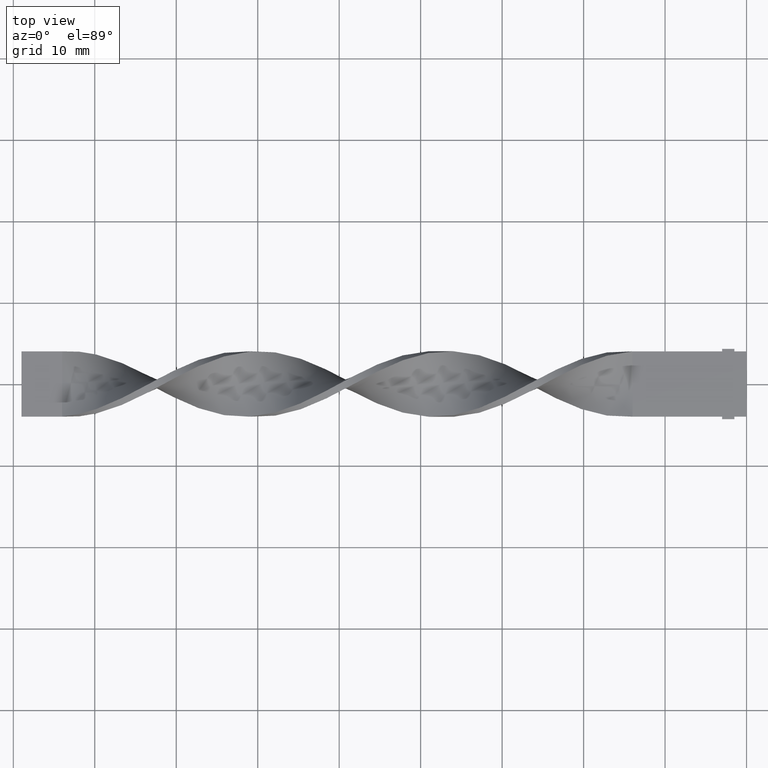
[diagram: clean part render]
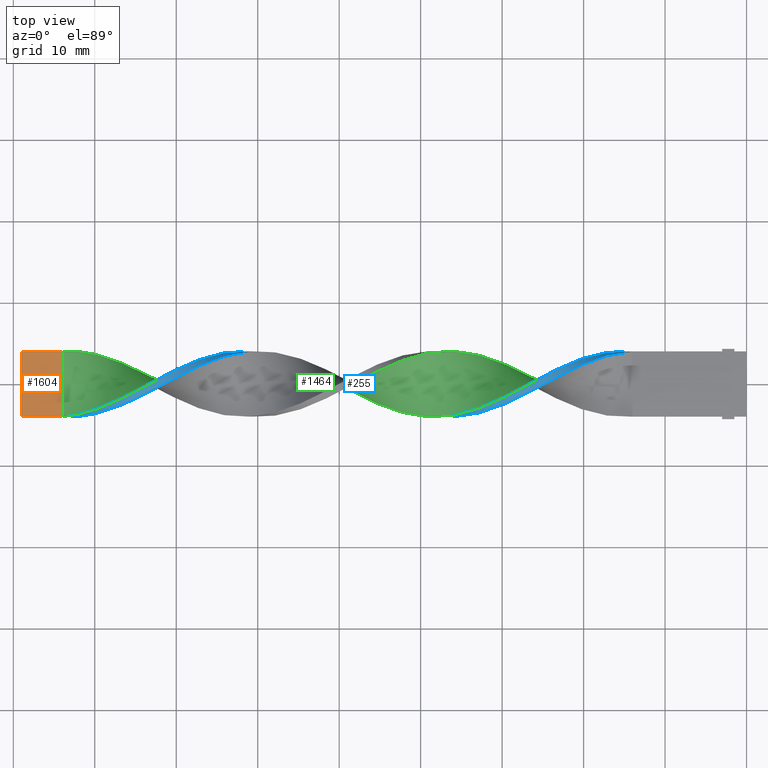
[diagram: same view with three faces highlighted in distinct colors, each labeled with its STEP entity id]
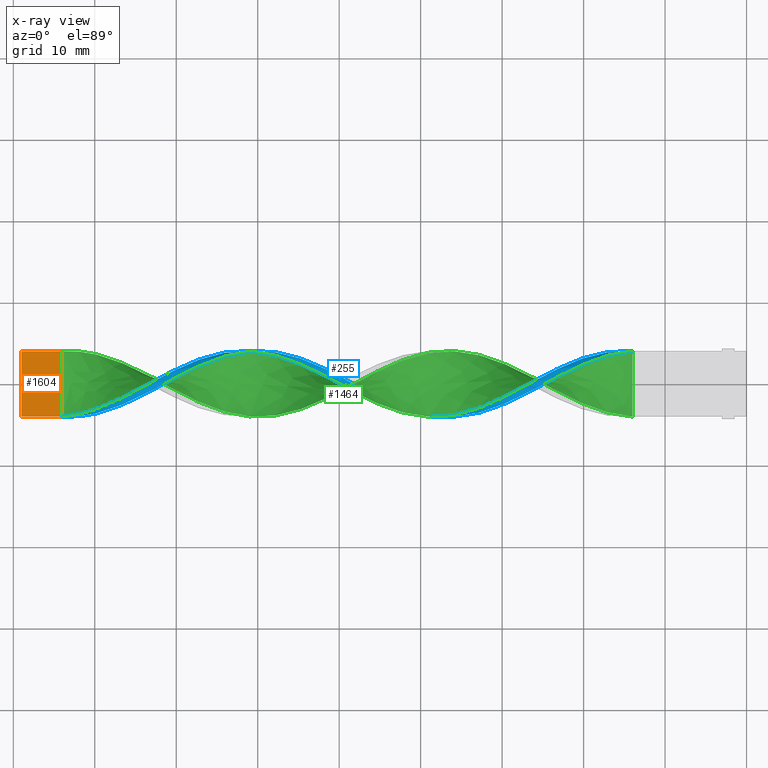
[diagram: x-ray of the same camera — body ghosted, the three highlighted faces saturated]
A machine part, top view with three faces highlighted in distinct colors.
The next image is the same camera in x-ray (body ghosted, the three faces saturated) — at least one of them is partly hidden behind the body in this view.
Their STEP definitions:

[orange] entity #1604 — the highlighted planar face has unit normal (0, -0, -1).
#5 = ORIENTED_EDGE ( 'NONE', *, *, #177, .T. ) ;
#20 = CARTESIAN_POINT ( 'NONE',  ( -84.00000000000000000, -4.000000000000003553, 0.5000000000000005551 ) ) ;
#40 = EDGE_CURVE ( 'NONE', #591, #249, #773, .T. ) ;
#116 = DIRECTION ( 'NONE',  ( 0.000000000000000000, 1.000000000000000000, -1.355252715606880543E-16 ) ) ;
#150 = CARTESIAN_POINT ( 'NONE',  ( -84.00000000000000000, 3.999999999999996447, 0.4999999999999994449 ) ) ;
#151 = CARTESIAN_POINT ( 'NONE',  ( -89.00000000000001421, -4.000000000000003553, 0.5000000000000005551 ) ) ;
#177 = EDGE_CURVE ( 'NONE', #1465, #249, #991, .T. ) ;
#228 = EDGE_CURVE ( 'NONE', #979, #1465, #632, .T. ) ;
#246 = EDGE_LOOP ( 'NONE', ( #5, #723, #740, #298 ) ) ;
#249 = VERTEX_POINT ( 'NONE', #150 ) ;
#298 = ORIENTED_EDGE ( 'NONE', *, *, #228, .T. ) ;
#521 = CARTESIAN_POINT ( 'NONE',  ( -84.00000000000000000, 1.333333333333329929, 0.4999999999999997780 ) ) ;
#532 = DIRECTION ( 'NONE',  ( 1.000000000000000000, -0.000000000000000000, -0.000000000000000000 ) ) ;
#591 = VERTEX_POINT ( 'NONE', #644 ) ;
#608 = CARTESIAN_POINT ( 'NONE',  ( -84.00000000000000000, -4.000000000000003553, 0.5000000000000005551 ) ) ;
#632 = LINE ( 'NONE', #1510, #1113 ) ;
#644 = CARTESIAN_POINT ( 'NONE',  ( -89.00000000000001421, 3.999999999999996447, 0.4999999999999994449 ) ) ;
#723 = ORIENTED_EDGE ( 'NONE', *, *, #40, .F. ) ;
#728 = AXIS2_PLACEMENT_3D ( 'NONE', #1369, #750, #116 ) ;
#740 = ORIENTED_EDGE ( 'NONE', *, *, #819, .F. ) ;
#750 = DIRECTION ( 'NONE',  ( 0.000000000000000000, -1.355252715606880543E-16, -1.000000000000000000 ) ) ;
#758 = DIRECTION ( 'NONE',  ( 1.000000000000000000, -0.000000000000000000, -0.000000000000000000 ) ) ;
#760 = PLANE ( 'NONE',  #728 ) ;
#766 = CARTESIAN_POINT ( 'NONE',  ( -89.00000000000001421, 3.999999999999996447, 0.4999999999999994449 ) ) ;
#773 = LINE ( 'NONE', #766, #1245 ) ;
#819 = EDGE_CURVE ( 'NONE', #979, #591, #1376, .T. ) ;
#979 = VERTEX_POINT ( 'NONE', #151 ) ;
#991 = B_SPLINE_CURVE_WITH_KNOTS ( 'NONE', 3,
 ( #20, #1130, #521, #1122 ),
 .UNSPECIFIED., .F., .F.,
 ( 4, 4 ),
 ( 0.000000000000000000, 1.000000000000000000 ),
 .UNSPECIFIED. ) ;
#1021 = DIRECTION ( 'NONE',  ( 0.000000000000000000, 1.000000000000000000, -1.355252715606880543E-16 ) ) ;
#1113 = VECTOR ( 'NONE', #532, 1000.000000000000000 ) ;
#1114 = VECTOR ( 'NONE', #1021, 1000.000000000000000 ) ;
#1122 = CARTESIAN_POINT ( 'NONE',  ( -84.00000000000000000, 3.999999999999996447, 0.4999999999999994449 ) ) ;
#1126 = FACE_OUTER_BOUND ( 'NONE', #246, .T. ) ;
#1130 = CARTESIAN_POINT ( 'NONE',  ( -84.00000000000000000, -1.333333333333337034, 0.5000000000000002220 ) ) ;
#1131 = CARTESIAN_POINT ( 'NONE',  ( -89.00000000000001421, -4.000000000000003553, 0.5000000000000005551 ) ) ;
#1245 = VECTOR ( 'NONE', #758, 1000.000000000000000 ) ;
#1369 = CARTESIAN_POINT ( 'NONE',  ( -89.00000000000001421, -4.000000000000003553, 0.5000000000000005551 ) ) ;
#1376 = LINE ( 'NONE', #1131, #1114 ) ;
#1465 = VERTEX_POINT ( 'NONE', #608 ) ;
#1510 = CARTESIAN_POINT ( 'NONE',  ( -89.00000000000001421, -4.000000000000003553, 0.5000000000000005551 ) ) ;
#1604 = ADVANCED_FACE ( 'NONE', ( #1126 ), #760, .F. ) ;

[blue] entity #255 — the highlighted face is a freeform B-spline surface patch.
#2 = CARTESIAN_POINT ( 'NONE',  ( -14.00000000000000000, 3.999999999999998224, 0.5000000000000000000 ) ) ;
#6 = CARTESIAN_POINT ( 'NONE',  ( -14.00000000000000000, 3.999999999999998224, -0.5000000000000000000 ) ) ;
#10 = CARTESIAN_POINT ( 'NONE',  ( -14.89743589743589780, 3.939289008388868307, 0.9856879328890423286 ) ) ;
#28 = CARTESIAN_POINT ( 'NONE',  ( -37.33333333333333570, -4.000000000000003553, -0.4999999999999994449 ) ) ;
#35 = CARTESIAN_POINT ( 'NONE',  ( -84.00000000000000000, -4.000000000000003553, -0.4999999999999994449 ) ) ;
#37 = CARTESIAN_POINT ( 'NONE',  ( -22.97435897435897445, 1.885927669512847960, 3.562762527220391995 ) ) ;
#43 = CARTESIAN_POINT ( 'NONE',  ( -66.05128205128204399, 2.662481663564004286, 3.026746007048731535 ) ) ;
#53 = CARTESIAN_POINT ( 'NONE',  ( -26.56410256410256210, 0.01420771602773235331, 4.031103836519879025 ) ) ;
#62 = CARTESIAN_POINT ( 'NONE',  ( -19.38461538461538680, 3.325604321804799923, 2.278235258877630454 ) ) ;
#69 = CARTESIAN_POINT ( 'NONE',  ( -17.58974358974358765, 3.774185688634721370, 1.416164675348469570 ) ) ;
#72 = CARTESIAN_POINT ( 'NONE',  ( -17.58974358974358765, 3.774185688634721370, 1.416164675348469570 ) ) ;
#76 = CARTESIAN_POINT ( 'NONE',  ( -55.28205128205128460, 2.662481663564002954, -3.026746007048732867 ) ) ;
#77 = CARTESIAN_POINT ( 'NONE',  ( -15.79487179487179560, 3.764109437560426930, 1.442733565863257184 ) ) ;
#78 = CARTESIAN_POINT ( 'NONE',  ( -75.02564102564102200, -0.9509114268274376780, 3.917367414262927561 ) ) ;
#85 = CARTESIAN_POINT ( 'NONE',  ( -67.84615384615385381, 2.683750919871449536, 3.007903090209048447 ) ) ;
#86 = CARTESIAN_POINT ( 'NONE',  ( -49.00000000000000000, 0.5036723384328376518, -4.029378707462732301 ) ) ;
#87 = CARTESIAN_POINT ( 'NONE',  ( -67.84615384615385381, 2.683750919871449536, 3.007903090209048447 ) ) ;
#95 = CARTESIAN_POINT ( 'NONE',  ( -26.56410256410256210, -0.9785011580703216749, 3.910567156264555422 ) ) ;
#97 = CARTESIAN_POINT ( 'NONE',  ( -39.12820512820512420, -4.003425101847990497, -0.4717917484372038395 ) ) ;
#101 = CARTESIAN_POINT ( 'NONE',  ( -83.10256410256410220, -3.939289008388873636, 0.9856879328890439940 ) ) ;
#102 = CARTESIAN_POINT ( 'NONE',  ( -62.46153846153845990, 3.764109437560426930, 1.442733565863257184 ) ) ;
#104 = CARTESIAN_POINT ( 'NONE',  ( -59.76923076923076650, 3.939289008388867863, -0.9856879328890445491 ) ) ;
#110 = CARTESIAN_POINT ( 'NONE',  ( -58.87179487179486870, 3.764109437560425597, -1.442733565863260736 ) ) ;
#111 = CARTESIAN_POINT ( 'NONE',  ( -47.20512820512820440, -0.4752569063773750546, -4.032828965577023972 ) ) ;
#113 = EDGE_CURVE ( 'NONE', #1544, #1465, #984, .T. ) ;
#114 = CARTESIAN_POINT ( 'NONE',  ( -72.33333333333332860, 0.5036723384328387620, 4.029378707462732301 ) ) ;
#120 = CARTESIAN_POINT ( 'NONE',  ( -84.00000000000000000, -4.000000000000003553, 0.5000000000000005551 ) ) ;
#126 = CARTESIAN_POINT ( 'NONE',  ( -75.92307692307691980, -2.318525361317906430, 3.333769449374406335 ) ) ;
#127 = CARTESIAN_POINT ( 'NONE',  ( -48.10256410256410220, 0.01420771602772958817, -4.031103836519879025 ) ) ;
#128 = DIRECTION ( 'NONE',  ( -0.000000000000000000, -0.000000000000000000, -1.000000000000000000 ) ) ;
#134 = CARTESIAN_POINT ( 'NONE',  ( -84.00000000000000000, -4.000000000000003553, -0.1666666666666661578 ) ) ;
#143 = CARTESIAN_POINT ( 'NONE',  ( -29.25641025641026260, -2.318525361317905986, 3.333769449374406335 ) ) ;
#157 = CARTESIAN_POINT ( 'NONE',  ( -79.51282051282051100, -3.602232165184607204, 1.874433786711571459 ) ) ;
#160 = EDGE_CURVE ( 'NONE', #705, #1465, #1226, .T. ) ;
#165 = CARTESIAN_POINT ( 'NONE',  ( -64.25641025641024839, 3.309462516590953030, 2.301620701001679148 ) ) ;
#173 = CARTESIAN_POINT ( 'NONE',  ( -66.94871794871794179, 2.294968160678090285, 3.350029810931577590 ) ) ;
#181 = CARTESIAN_POINT ( 'NONE',  ( -73.23076923076924061, -0.9785011580703216749, 3.910567156264555422 ) ) ;
#187 = CARTESIAN_POINT ( 'NONE',  ( -58.87179487179486870, 4.003425101847984280, -0.4717917484372088910 ) ) ;
#189 = CARTESIAN_POINT ( 'NONE',  ( -14.00000000000000000, 3.999999999999998224, -0.5000000000000000000 ) ) ;
#197 = CARTESIAN_POINT ( 'NONE',  ( -60.66666666666666430, 3.999999999999998224, -0.5000000000000000000 ) ) ;
#202 = CARTESIAN_POINT ( 'NONE',  ( -42.71794871794872250, -3.325604321804806141, -2.278235258877630010 ) ) ;
#203 = CARTESIAN_POINT ( 'NONE',  ( -50.79487179487178850, 1.453329977707792819, -3.791755605066379875 ) ) ;
#206 = CARTESIAN_POINT ( 'NONE',  ( -71.43589743589744501, 0.9785011580703169010, 3.910567156264555422 ) ) ;
#212 = CARTESIAN_POINT ( 'NONE',  ( -59.76923076923077360, 3.939289008388868307, -0.9856879328890444381 ) ) ;
#213 = CARTESIAN_POINT ( 'NONE',  ( -54.38461538461538680, 3.048976478424995307, -2.682036731043693667 ) ) ;
#215 = CARTESIAN_POINT ( 'NONE',  ( -25.66666666666667140, 0.5036723384328387620, 4.029378707462732301 ) ) ;
#220 = CARTESIAN_POINT ( 'NONE',  ( -70.53846153846153300, 1.453329977707794374, 3.791755605066378543 ) ) ;
#221 = CARTESIAN_POINT ( 'NONE',  ( -22.07692307692308020, 1.426565947277495860, 3.801905862948831594 ) ) ;
#222 = CARTESIAN_POINT ( 'NONE',  ( -40.92307692307691980, -3.774185688634727587, -1.416164675348469348 ) ) ;
#229 = CARTESIAN_POINT ( 'NONE',  ( -62.46153846153845990, 4.003425101847984280, 0.4717917484372052273 ) ) ;
#230 = CARTESIAN_POINT ( 'NONE',  ( -23.87179487179487936, 0.4752569063773692815, 4.032828965577024860 ) ) ;
#231 = CARTESIAN_POINT ( 'NONE',  ( -68.74358974358973740, 2.318525361317900657, 3.333769449374405891 ) ) ;
#236 = ORIENTED_EDGE ( 'NONE', *, *, #1407, .F. ) ;
#238 = CARTESIAN_POINT ( 'NONE',  ( -22.97435897435897445, 0.9509114268274332371, 3.917367414262927561 ) ) ;
#241 = CARTESIAN_POINT ( 'NONE',  ( -35.53846153846154010, -4.003425101847990497, 0.4717917484372066705 ) ) ;
#255 = ADVANCED_FACE ( 'NONE', ( #1493 ), #1410, .T. ) ;
#257 =( BOUNDED_CURVE ( )  B_SPLINE_CURVE ( 2, ( #907, #1279, #77, #978, #1318, #945, #483, #720, #704, #221, #238, #230, #839, #1565, #95, #596, #1196, #955, #457, #1600, #1440, #845, #580, #1352, #861, #1476, #1329, #362, #368, #334, #1214, #602, #1450, #1188, #1092, #827, #1582, #111, #1099, #86, #1336, #203, #971, #1344, #467, #213, #610, #587, #473, #489, #1069, #1206, #1460, #712, #102, #1083, #1592, #1078, #1471, #853, #727, #1573, #1223, #345, #965, #353, #631, #993, #762, #126, #1515, #1121, #1009, #1019, #1381, #1135, #1507, #376, #399 ),
 .UNSPECIFIED., .F., .T. ) 
 B_SPLINE_CURVE_WITH_KNOTS ( ( 3, 2, 2, 2, 2, 2, 2, 2, 2, 2, 2, 2, 2, 2, 2, 2, 2, 2, 2, 2, 2, 2, 2, 2, 2, 2, 2, 2, 2, 2, 2, 2, 2, 2, 2, 2, 2, 2, 2, 3 ),
 ( 0.000000000000000000, 0.01923076923076923184, 0.03846153846153846367, 0.05769230769230768857, 0.07692307692307692735, 0.09615384615384615918, 0.1153846153846153771, 0.1346153846153846090, 0.1538461538461538547, 0.1730769230769230449, 0.1923076923076923184, 0.2115384615384615363, 0.2307692307692307543, 0.2500000000000000000, 0.2692307692307692180, 0.2884615384615384359, 0.3076923076923077094, 0.3269230769230769273, 0.3461538461538460898, 0.3653846153846153633, 0.3846153846153846367, 0.4038461538461539102, 0.4230769230769230727, 0.4423076923076922906, 0.4615384615384615086, 0.4807692307692307820, 0.5000000000000000000, 0.5192307692307692735, 0.5384615384615384359, 0.5576923076923077094, 0.5769230769230768718, 0.5961538461538461453, 0.6153846153846154188, 0.6346153846153845812, 0.6538461538461538547, 0.6730769230769230171, 0.6923076923076921796, 0.7115384615384615641, 0.7307692307692307265, 0.7500000000000000000 ),
 .UNSPECIFIED. ) 
 CURVE ( )  GEOMETRIC_REPRESENTATION_ITEM ( )  RATIONAL_B_SPLINE_CURVE ( ( 1.000000000000000000, 0.9927088740980539727, 1.000000000000000000, 0.9927088740980539727, 1.000000000000000000, 0.9927088740980539727, 1.000000000000000000, 0.9927088740980539727, 1.000000000000000000, 0.9927088740980539727, 1.000000000000000000, 0.9927088740980539727, 1.000000000000000000, 0.9927088740980539727, 1.000000000000000000, 0.9927088740980539727, 1.000000000000000000, 0.9927088740980539727, 1.000000000000000000, 0.9927088740980539727, 1.000000000000000000, 0.9927088740980539727, 1.000000000000000000, 0.9927088740980539727, 1.000000000000000000, 0.9927088740980539727, 1.000000000000000000, 0.9927088740980539727, 1.000000000000000000, 0.9927088740980539727, 1.000000000000000000, 0.9927088740980539727, 1.000000000000000000, 0.9927088740980539727, 1.000000000000000000, 0.9927088740980539727, 1.000000000000000000, 0.9927088740980539727, 1.000000000000000000, 0.9927088740980539727, 1.000000000000000000, 0.9927088740980539727, 1.000000000000000000, 0.9927088740980539727, 1.000000000000000000, 0.9927088740980539727, 1.000000000000000000, 0.9927088740980539727, 1.000000000000000000, 0.9927088740980539727, 1.000000000000000000, 0.9927088740980539727, 1.000000000000000000, 0.9927088740980539727, 1.000000000000000000, 0.9927088740980539727, 1.000000000000000000, 0.9927088740980539727, 1.000000000000000000, 0.9927088740980539727, 1.000000000000000000, 0.9927088740980539727, 1.000000000000000000, 0.9927088740980539727, 1.000000000000000000, 0.9927088740980539727, 1.000000000000000000, 0.9927088740980539727, 1.000000000000000000, 0.9927088740980539727, 1.000000000000000000, 0.9927088740980539727, 1.000000000000000000, 0.9927088740980539727, 1.000000000000000000, 0.9927088740980539727, 1.000000000000000000, 0.9927088740980539727, 1.000000000000000000 ) ) 
 REPRESENTATION_ITEM ( '' )  );
#263 = CARTESIAN_POINT ( 'NONE',  ( -84.00000000000000000, -4.000000000000003553, -0.4999999999999994449 ) ) ;
#270 = CARTESIAN_POINT ( 'NONE',  ( -32.84615384615384670, -3.602232165184607204, 1.874433786711571459 ) ) ;
#278 = CARTESIAN_POINT ( 'NONE',  ( -14.89743589743589780, 4.060710991611130360, -0.01431206711095779106 ) ) ;
#285 = CARTESIAN_POINT ( 'NONE',  ( -57.07692307692307310, 3.774185688634720481, -1.416164675348472235 ) ) ;
#293 = CARTESIAN_POINT ( 'NONE',  ( -80.41025641025640880, -3.774185688634727143, 1.416164675348470237 ) ) ;
#302 = CARTESIAN_POINT ( 'NONE',  ( -22.97435897435897445, 1.885927669512847960, 3.562762527220391995 ) ) ;
#313 = CARTESIAN_POINT ( 'NONE',  ( -62.46153846153845990, 3.764109437560426930, 1.442733565863257184 ) ) ;
#324 = CARTESIAN_POINT ( 'NONE',  ( -81.30769230769233502, -3.588929866731992657, 1.899779198837473482 ) ) ;
#333 = CARTESIAN_POINT ( 'NONE',  ( -76.82051282051281760, -1.860767053977798069, 3.575967836940205036 ) ) ;
#334 = CARTESIAN_POINT ( 'NONE',  ( -40.02564102564102200, -3.588929866731993545, -1.899779198837470817 ) ) ;
#337 = CARTESIAN_POINT ( 'NONE',  ( -79.51282051282051100, -3.029995166449925836, 2.703462203165886812 ) ) ;
#344 = CARTESIAN_POINT ( 'NONE',  ( -74.12820512820512420, -0.4752569063773749436, 4.032828965577023972 ) ) ;
#345 = CARTESIAN_POINT ( 'NONE',  ( -70.53846153846153300, 0.4752569063773692815, 4.032828965577024860 ) ) ;
#347 = CARTESIAN_POINT ( 'NONE',  ( -32.84615384615384670, -3.029995166449925836, 2.703462203165886812 ) ) ;
#352 = CARTESIAN_POINT ( 'NONE',  ( -44.51282051282051100, -2.683750919871455309, -3.007903090209048447 ) ) ;
#353 = CARTESIAN_POINT ( 'NONE',  ( -72.33333333333332860, -0.5036723384328443132, 4.029378707462732301 ) ) ;
#355 = CARTESIAN_POINT ( 'NONE',  ( -58.87179487179486870, 3.764109437560425597, -1.442733565863260736 ) ) ;
#361 = CARTESIAN_POINT ( 'NONE',  ( -48.10256410256410220, -0.9785011580703245615, -3.910567156264555422 ) ) ;
#362 = CARTESIAN_POINT ( 'NONE',  ( -38.23076923076922640, -3.939289008388873192, -0.9856879328890414405 ) ) ;
#364 = CARTESIAN_POINT ( 'NONE',  ( -37.33333333333333570, -4.000000000000003553, 0.5000000000000005551 ) ) ;
#368 = CARTESIAN_POINT ( 'NONE',  ( -39.12820512820512420, -3.764109437560433591, -1.442733565863255851 ) ) ;
#370 = CARTESIAN_POINT ( 'NONE',  ( -45.41025641025640880, -2.318525361317908207, -3.333769449374404559 ) ) ;
#376 = CARTESIAN_POINT ( 'NONE',  ( -83.10256410256410220, -4.060710991611133913, -0.01431206711095594705 ) ) ;
#378 = CARTESIAN_POINT ( 'NONE',  ( -25.66666666666667140, -0.5036723384328442021, 4.029378707462732301 ) ) ;
#386 = CARTESIAN_POINT ( 'NONE',  ( -16.69230769230770051, 3.588929866731986884, 1.899779198837472149 ) ) ;
#392 = CARTESIAN_POINT ( 'NONE',  ( -18.48717948717948900, 3.029995166449920063, 2.703462203165886368 ) ) ;
#399 = CARTESIAN_POINT ( 'NONE',  ( -84.00000000000000000, -4.000000000000003553, -0.4999999999999994449 ) ) ;
#400 = CARTESIAN_POINT ( 'NONE',  ( -24.76923076923077005, -0.01420771602773701625, 4.031103836519879025 ) ) ;
#412 = CARTESIAN_POINT ( 'NONE',  ( -75.02564102564102200, -1.885927669512852622, 3.562762527220392439 ) ) ;
#424 = CARTESIAN_POINT ( 'NONE',  ( -23.87179487179487936, 1.453329977707794374, 3.791755605066378543 ) ) ;
#430 = CARTESIAN_POINT ( 'NONE',  ( -74.12820512820512420, -1.453329977707800591, 3.791755605066378543 ) ) ;
#439 = CARTESIAN_POINT ( 'NONE',  ( -33.74358974358974450, -3.309462516590958803, 2.301620701001680036 ) ) ;
#447 = CARTESIAN_POINT ( 'NONE',  ( -71.43589743589744501, 0.9785011580703169010, 3.910567156264555422 ) ) ;
#449 = CARTESIAN_POINT ( 'NONE',  ( -20.28205128205128460, 3.048976478424997971, 2.682036731043691002 ) ) ;
#457 = CARTESIAN_POINT ( 'NONE',  ( -30.15384615384615685, -2.683750919871454421, 3.007903090209048891 ) ) ;
#459 = CARTESIAN_POINT ( 'NONE',  ( -77.71794871794874382, -2.294968160678094726, 3.350029810931578478 ) ) ;
#467 = CARTESIAN_POINT ( 'NONE',  ( -53.48717948717948900, 2.683750919871448204, -3.007903090209049779 ) ) ;
#469 = CARTESIAN_POINT ( 'NONE',  ( -40.02564102564102200, -3.946139212084848413, -0.9578955639853666826 ) ) ;
#472 = CARTESIAN_POINT ( 'NONE',  ( -51.69230769230769340, 0.9509114268274320159, -3.917367414262928449 ) ) ;
#473 = CARTESIAN_POINT ( 'NONE',  ( -57.07692307692307310, 3.774185688634720481, -1.416164675348472235 ) ) ;
#477 = CARTESIAN_POINT ( 'NONE',  ( -26.56410256410256210, 0.01420771602773235331, 4.031103836519879025 ) ) ;
#482 = CARTESIAN_POINT ( 'NONE',  ( -41.82051282051282470, -3.602232165184608537, -1.874433786711570571 ) ) ;
#483 = CARTESIAN_POINT ( 'NONE',  ( -19.38461538461538680, 2.662481663564004286, 3.026746007048731535 ) ) ;
#485 = CARTESIAN_POINT ( 'NONE',  ( -44.51282051282051100, -2.683750919871455309, -3.007903090209048447 ) ) ;
#489 = CARTESIAN_POINT ( 'NONE',  ( -57.97435897435897090, 3.946139212084841308, -0.9578955639853697912 ) ) ;
#490 = CARTESIAN_POINT ( 'NONE',  ( -33.74358974358974450, -3.309462516590958803, 2.301620701001680036 ) ) ;
#496 = CARTESIAN_POINT ( 'NONE',  ( -44.51282051282051100, -1.860767053977798957, -3.575967836940204592 ) ) ;
#504 = CARTESIAN_POINT ( 'NONE',  ( -41.82051282051282470, -3.029995166449926280, -2.703462203165886368 ) ) ;
#513 = CARTESIAN_POINT ( 'NONE',  ( -15.79487179487179560, 3.764109437560426930, 1.442733565863257184 ) ) ;
#539 = CARTESIAN_POINT ( 'NONE',  ( -20.28205128205128460, 3.048976478424997971, 2.682036731043690558 ) ) ;
#541 = CARTESIAN_POINT ( 'NONE',  ( -23.87179487179487936, 1.453329977707794374, 3.791755605066378543 ) ) ;
#546 = CARTESIAN_POINT ( 'NONE',  ( -78.61538461538461320, -3.325604321804804808, 2.278235258877631786 ) ) ;
#555 = CARTESIAN_POINT ( 'NONE',  ( -14.00000000000000000, 3.999999999999998224, -0.5000000000000000000 ) ) ;
#562 = CARTESIAN_POINT ( 'NONE',  ( -50.79487179487178850, 1.453329977707792597, -3.791755605066379875 ) ) ;
#570 = CARTESIAN_POINT ( 'NONE',  ( -16.69230769230770051, 3.946139212084842640, 0.9578955639853680148 ) ) ;
#572 = CARTESIAN_POINT ( 'NONE',  ( -18.48717948717948900, 3.602232165184601875, 1.874433786711570793 ) ) ;
#579 = CARTESIAN_POINT ( 'NONE',  ( -84.00000000000000000, -4.000000000000003553, 0.5000000000000005551 ) ) ;
#580 = CARTESIAN_POINT ( 'NONE',  ( -33.74358974358974450, -3.774185688634727143, 1.416164675348470237 ) ) ;
#581 = CARTESIAN_POINT ( 'NONE',  ( -63.35897435897436480, 3.946139212084842196, 0.9578955639853680148 ) ) ;
#586 = CARTESIAN_POINT ( 'NONE',  ( -75.02564102564102200, -0.9509114268274376780, 3.917367414262927561 ) ) ;
#587 = CARTESIAN_POINT ( 'NONE',  ( -56.17948717948717530, 3.602232165184601431, -1.874433786711571681 ) ) ;
#588 = CARTESIAN_POINT ( 'NONE',  ( -80.41025641025640880, -3.309462516590958803, 2.301620701001680036 ) ) ;
#595 = CARTESIAN_POINT ( 'NONE',  ( -37.33333333333333570, -4.000000000000003553, 0.5000000000000005551 ) ) ;
#596 = CARTESIAN_POINT ( 'NONE',  ( -27.46153846153846345, -1.453329977707800369, 3.791755605066378543 ) ) ;
#598 = CARTESIAN_POINT ( 'NONE',  ( -43.61538461538462030, -3.048976478425005521, -2.682036731043690114 ) ) ;
#601 = CARTESIAN_POINT ( 'NONE',  ( -39.12820512820512420, -4.003425101847990497, -0.4717917484372038395 ) ) ;
#602 = CARTESIAN_POINT ( 'NONE',  ( -41.82051282051282470, -3.029995166449926280, -2.703462203165886368 ) ) ;
#605 = CARTESIAN_POINT ( 'NONE',  ( -61.56410256410256920, 4.060710991611130360, -0.01431206711095778933 ) ) ;
#608 = CARTESIAN_POINT ( 'NONE',  ( -84.00000000000000000, -4.000000000000003553, 0.5000000000000005551 ) ) ;
#609 = CARTESIAN_POINT ( 'NONE',  ( -65.15384615384616041, 3.602232165184601875, 1.874433786711571015 ) ) ;
#610 = CARTESIAN_POINT ( 'NONE',  ( -55.28205128205128460, 3.325604321804798147, -2.278235258877632230 ) ) ;
#611 = CARTESIAN_POINT ( 'NONE',  ( -36.43589743589743790, -3.939289008388873192, 0.9856879328890441050 ) ) ;
#617 = CARTESIAN_POINT ( 'NONE',  ( -38.23076923076922640, -3.939289008388873636, -0.9856879328890413294 ) ) ;
#624 = CARTESIAN_POINT ( 'NONE',  ( -43.61538461538462030, -2.294968160678097391, -3.350029810931576701 ) ) ;
#631 = CARTESIAN_POINT ( 'NONE',  ( -73.23076923076924061, -0.9785011580703216749, 3.910567156264555422 ) ) ;
#649 = CARTESIAN_POINT ( 'NONE',  ( -19.38461538461538680, 2.662481663564004286, 3.026746007048731535 ) ) ;
#656 = CARTESIAN_POINT ( 'NONE',  ( -52.58974358974358410, 2.318525361317898437, -3.333769449374407223 ) ) ;
#663 = CARTESIAN_POINT ( 'NONE',  ( -55.28205128205128460, 3.325604321804798147, -2.278235258877632230 ) ) ;
#670 = CARTESIAN_POINT ( 'NONE',  ( -57.97435897435897090, 3.946139212084841752, -0.9578955639853696802 ) ) ;
#679 = CARTESIAN_POINT ( 'NONE',  ( -31.05128205128206176, -2.294968160678094726, 3.350029810931578478 ) ) ;
#687 = CARTESIAN_POINT ( 'NONE',  ( -53.48717948717948900, 2.683750919871448204, -3.007903090209049779 ) ) ;
#689 = CARTESIAN_POINT ( 'NONE',  ( -14.89743589743589780, 4.060710991611130360, -0.01431206711095778933 ) ) ;
#693 = CARTESIAN_POINT ( 'NONE',  ( -36.43589743589743790, -3.939289008388873636, 0.9856879328890439940 ) ) ;
#696 = CARTESIAN_POINT ( 'NONE',  ( -73.23076923076924061, 0.01420771602773235331, 4.031103836519879025 ) ) ;
#698 = ORIENTED_EDGE ( 'NONE', *, *, #160, .F. ) ;
#703 = CARTESIAN_POINT ( 'NONE',  ( -61.56410256410256920, 4.060710991611130360, -0.01431206711095779106 ) ) ;
#704 = CARTESIAN_POINT ( 'NONE',  ( -21.17948717948717885, 1.860767053977792962, 3.575967836940204592 ) ) ;
#705 = VERTEX_POINT ( 'NONE', #1288 ) ;
#706 = CARTESIAN_POINT ( 'NONE',  ( -34.64102564102564230, -3.588929866731991769, 1.899779198837473482 ) ) ;
#711 = CARTESIAN_POINT ( 'NONE',  ( -52.58974358974358410, 1.426565947277493640, -3.801905862948832038 ) ) ;
#712 = CARTESIAN_POINT ( 'NONE',  ( -61.56410256410256920, 3.939289008388867863, 0.9856879328890423286 ) ) ;
#714 = CARTESIAN_POINT ( 'NONE',  ( -54.38461538461538680, 2.294968160678086289, -3.350029810931579366 ) ) ;
#719 = CARTESIAN_POINT ( 'NONE',  ( -75.92307692307693401, -1.426565947277501634, 3.801905862948831150 ) ) ;
#720 = CARTESIAN_POINT ( 'NONE',  ( -20.28205128205128460, 2.294968160678089841, 3.350029810931577590 ) ) ;
#721 = CARTESIAN_POINT ( 'NONE',  ( -28.35897435897435770, -0.9509114268274376780, 3.917367414262927561 ) ) ;
#726 = CARTESIAN_POINT ( 'NONE',  ( -63.35897435897435770, 3.946139212084842640, 0.9578955639853680148 ) ) ;
#727 = CARTESIAN_POINT ( 'NONE',  ( -67.84615384615385381, 1.860767053977792962, 3.575967836940204592 ) ) ;
#729 = CARTESIAN_POINT ( 'NONE',  ( -69.64102564102564941, 1.885927669512847960, 3.562762527220391995 ) ) ;
#737 = CARTESIAN_POINT ( 'NONE',  ( -39.12820512820512420, -3.764109437560433591, -1.442733565863255851 ) ) ;
#746 = CARTESIAN_POINT ( 'NONE',  ( -20.28205128205128460, 2.294968160678090285, 3.350029810931577590 ) ) ;
#753 = CARTESIAN_POINT ( 'NONE',  ( -83.10256410256410220, -3.939289008388873192, 0.9856879328890441050 ) ) ;
#762 = CARTESIAN_POINT ( 'NONE',  ( -75.02564102564102200, -1.885927669512852622, 3.562762527220392439 ) ) ;
#763 = CARTESIAN_POINT ( 'NONE',  ( -27.46153846153846345, -1.453329977707800591, 3.791755605066378543 ) ) ;
#770 = CARTESIAN_POINT ( 'NONE',  ( -33.74358974358974450, -3.774185688634727143, 1.416164675348470237 ) ) ;
#777 = CARTESIAN_POINT ( 'NONE',  ( -15.79487179487179560, 4.003425101847984280, 0.4717917484372052273 ) ) ;
#784 = CARTESIAN_POINT ( 'NONE',  ( -49.89743589743589069, 0.9785011580703134593, -3.910567156264556310 ) ) ;
#795 = CARTESIAN_POINT ( 'NONE',  ( -61.56410256410256920, 3.939289008388868307, 0.9856879328890423286 ) ) ;
#802 = CARTESIAN_POINT ( 'NONE',  ( -25.66666666666667140, 0.5036723384328387620, 4.029378707462732301 ) ) ;
#813 = CARTESIAN_POINT ( 'NONE',  ( -28.35897435897435770, -0.9509114268274376780, 3.917367414262927561 ) ) ;
#820 = CARTESIAN_POINT ( 'NONE',  ( -82.20512820512820440, -3.764109437560432259, 1.442733565863258516 ) ) ;
#826 = CARTESIAN_POINT ( 'NONE',  ( -64.25641025641024839, 3.774185688634721370, 1.416164675348469570 ) ) ;
#827 = CARTESIAN_POINT ( 'NONE',  ( -45.41025641025640880, -1.426565947277504076, -3.801905862948830261 ) ) ;
#829 = CARTESIAN_POINT ( 'NONE',  ( -38.23076923076922640, -4.060710991611133913, 0.01431206711095865669 ) ) ;
#838 = CARTESIAN_POINT ( 'NONE',  ( -40.92307692307691980, -3.774185688634727587, -1.416164675348469348 ) ) ;
#839 = CARTESIAN_POINT ( 'NONE',  ( -24.76923076923077005, -0.01420771602773701625, 4.031103836519879025 ) ) ;
#840 = CARTESIAN_POINT ( 'NONE',  ( -56.17948717948717530, 3.029995166449919619, -2.703462203165887257 ) ) ;
#844 = CARTESIAN_POINT ( 'NONE',  ( -35.53846153846154010, -3.764109437560432259, 1.442733565863258516 ) ) ;
#845 = CARTESIAN_POINT ( 'NONE',  ( -32.84615384615384670, -3.602232165184608093, 1.874433786711571237 ) ) ;
#846 = CARTESIAN_POINT ( 'NONE',  ( -62.46153846153845990, 4.003425101847984280, 0.4717917484372052273 ) ) ;
#852 = CARTESIAN_POINT ( 'NONE',  ( -66.94871794871794179, 3.048976478424997971, 2.682036731043690558 ) ) ;
#853 = CARTESIAN_POINT ( 'NONE',  ( -66.94871794871795601, 2.294968160678089841, 3.350029810931577590 ) ) ;
#856 = CARTESIAN_POINT ( 'NONE',  ( -46.30769230769230660, -1.885927669512854399, -3.562762527220391995 ) ) ;
#861 = CARTESIAN_POINT ( 'NONE',  ( -35.53846153846154010, -4.003425101847990497, 0.4717917484372066705 ) ) ;
#863 = CARTESIAN_POINT ( 'NONE',  ( -53.48717948717948900, 1.860767053977791630, -3.575967836940205036 ) ) ;
#869 = CARTESIAN_POINT ( 'NONE',  ( -46.30769230769230660, -0.9509114268274397874, -3.917367414262927561 ) ) ;
#876 = CARTESIAN_POINT ( 'NONE',  ( -21.17948717948717885, 1.860767053977792962, 3.575967836940204592 ) ) ;
#894 = CARTESIAN_POINT ( 'NONE',  ( -30.15384615384615685, -2.683750919871454421, 3.007903090209048891 ) ) ;
#899 = CARTESIAN_POINT ( 'NONE',  ( -76.82051282051281760, -2.683750919871454421, 3.007903090209048891 ) ) ;
#906 = CARTESIAN_POINT ( 'NONE',  ( -82.20512820512820440, -4.003425101847990497, 0.4717917484372066705 ) ) ;
#907 = CARTESIAN_POINT ( 'NONE',  ( -13.99999999999999822, 3.999999999999998224, 0.5000000000000000000 ) ) ;
#913 = CARTESIAN_POINT ( 'NONE',  ( -63.35897435897435770, 3.588929866731986884, 1.899779198837472149 ) ) ;
#915 = CARTESIAN_POINT ( 'NONE',  ( -22.07692307692308020, 2.318525361317900657, 3.333769449374405891 ) ) ;
#922 = CARTESIAN_POINT ( 'NONE',  ( -22.07692307692308376, 2.318525361317900657, 3.333769449374405891 ) ) ;
#929 = CARTESIAN_POINT ( 'NONE',  ( -34.64102564102564230, -3.588929866731992657, 1.899779198837473482 ) ) ;
#937 = CARTESIAN_POINT ( 'NONE',  ( -77.71794871794872961, -2.294968160678094726, 3.350029810931578478 ) ) ;
#944 = CARTESIAN_POINT ( 'NONE',  ( -49.00000000000000711, -0.5036723384328452013, -4.029378707462732301 ) ) ;
#945 = CARTESIAN_POINT ( 'NONE',  ( -18.48717948717948900, 3.029995166449920063, 2.703462203165886368 ) ) ;
#946 = CARTESIAN_POINT ( 'NONE',  ( -78.61538461538461320, -2.662481663564009171, 3.026746007048732423 ) ) ;
#955 = CARTESIAN_POINT ( 'NONE',  ( -29.25641025641026260, -2.318525361317906430, 3.333769449374406335 ) ) ;
#956 = CARTESIAN_POINT ( 'NONE',  ( -82.20512820512820440, -3.764109437560432259, 1.442733565863258516 ) ) ;
#960 = ORIENTED_EDGE ( 'NONE', *, *, #975, .T. ) ;
#964 = CARTESIAN_POINT ( 'NONE',  ( -56.17948717948717530, 3.029995166449919619, -2.703462203165887257 ) ) ;
#965 = CARTESIAN_POINT ( 'NONE',  ( -71.43589743589744501, -0.01420771602773701625, 4.031103836519879025 ) ) ;
#966 = CARTESIAN_POINT ( 'NONE',  ( -55.28205128205128460, 2.662481663564002954, -3.026746007048732867 ) ) ;
#970 = CARTESIAN_POINT ( 'NONE',  ( -47.20512820512820440, -1.453329977707800813, -3.791755605066378543 ) ) ;
#971 = CARTESIAN_POINT ( 'NONE',  ( -51.69230769230769340, 1.885927669512847071, -3.562762527220392439 ) ) ;
#972 = CARTESIAN_POINT ( 'NONE',  ( -48.10256410256410220, -0.9785011580703245615, -3.910567156264555422 ) ) ;
#975 = EDGE_CURVE ( 'NONE', #1086, #1544, #1240, .T. ) ;
#978 = CARTESIAN_POINT ( 'NONE',  ( -16.69230769230769695, 3.588929866731987328, 1.899779198837472149 ) ) ;
#980 = CARTESIAN_POINT ( 'NONE',  ( -42.71794871794872250, -3.325604321804806141, -2.278235258877630010 ) ) ;
#984 =( BOUNDED_CURVE ( )  B_SPLINE_CURVE ( 2, ( #189, #689, #1183, #1037, #72, #572, #1534, #449, #1147, #915, #37, #541, #1408, #215, #477, #1451, #721, #1207, #1461, #1478, #1094, #347, #490, #706, #1595, #611, #364, #829, #97, #469, #222, #1198, #980, #598, #485, #370, #856, #1102, #972, #1442, #1472, #1320, #1084, #1584, #863, #714, #966, #840, #1330, #1215, #355, #104, #197, #605, #846, #581, #1337, #1602, #1346, #1574, #87, #231, #729, #1224, #206, #114, #696, #1189, #78, #1070, #1567, #459, #946, #337, #588, #1079, #956, #753, #120 ),
 .UNSPECIFIED., .F., .T. ) 
 B_SPLINE_CURVE_WITH_KNOTS ( ( 3, 2, 2, 2, 2, 2, 2, 2, 2, 2, 2, 2, 2, 2, 2, 2, 2, 2, 2, 2, 2, 2, 2, 2, 2, 2, 2, 2, 2, 2, 2, 2, 2, 2, 2, 2, 2, 2, 2, 3 ),
 ( 0.000000000000000000, 0.01923076923076923184, 0.03846153846153846367, 0.05769230769230768857, 0.07692307692307692735, 0.09615384615384615918, 0.1153846153846153771, 0.1346153846153846090, 0.1538461538461538547, 0.1730769230769230449, 0.1923076923076923184, 0.2115384615384615363, 0.2307692307692307543, 0.2500000000000000000, 0.2692307692307692180, 0.2884615384615384359, 0.3076923076923077094, 0.3269230769230769273, 0.3461538461538460898, 0.3653846153846153633, 0.3846153846153846367, 0.4038461538461539102, 0.4230769230769230727, 0.4423076923076922906, 0.4615384615384615086, 0.4807692307692307820, 0.5000000000000000000, 0.5192307692307692735, 0.5384615384615384359, 0.5576923076923077094, 0.5769230769230768718, 0.5961538461538461453, 0.6153846153846154188, 0.6346153846153845812, 0.6538461538461538547, 0.6730769230769230171, 0.6923076923076921796, 0.7115384615384615641, 0.7307692307692307265, 0.7500000000000000000 ),
 .UNSPECIFIED. ) 
 CURVE ( )  GEOMETRIC_REPRESENTATION_ITEM ( )  RATIONAL_B_SPLINE_CURVE ( ( 1.000000000000000000, 0.9927088740980539727, 1.000000000000000000, 0.9927088740980539727, 1.000000000000000000, 0.9927088740980539727, 1.000000000000000000, 0.9927088740980539727, 1.000000000000000000, 0.9927088740980539727, 1.000000000000000000, 0.9927088740980539727, 1.000000000000000000, 0.9927088740980539727, 1.000000000000000000, 0.9927088740980539727, 1.000000000000000000, 0.9927088740980539727, 1.000000000000000000, 0.9927088740980539727, 1.000000000000000000, 0.9927088740980539727, 1.000000000000000000, 0.9927088740980539727, 1.000000000000000000, 0.9927088740980539727, 1.000000000000000000, 0.9927088740980539727, 1.000000000000000000, 0.9927088740980539727, 1.000000000000000000, 0.9927088740980539727, 1.000000000000000000, 0.9927088740980539727, 1.000000000000000000, 0.9927088740980539727, 1.000000000000000000, 0.9927088740980539727, 1.000000000000000000, 0.9927088740980539727, 1.000000000000000000, 0.9927088740980539727, 1.000000000000000000, 0.9927088740980539727, 1.000000000000000000, 0.9927088740980539727, 1.000000000000000000, 0.9927088740980539727, 1.000000000000000000, 0.9927088740980539727, 1.000000000000000000, 0.9927088740980539727, 1.000000000000000000, 0.9927088740980539727, 1.000000000000000000, 0.9927088740980539727, 1.000000000000000000, 0.9927088740980539727, 1.000000000000000000, 0.9927088740980539727, 1.000000000000000000, 0.9927088740980539727, 1.000000000000000000, 0.9927088740980539727, 1.000000000000000000, 0.9927088740980539727, 1.000000000000000000, 0.9927088740980539727, 1.000000000000000000, 0.9927088740980539727, 1.000000000000000000, 0.9927088740980539727, 1.000000000000000000, 0.9927088740980539727, 1.000000000000000000, 0.9927088740980539727, 1.000000000000000000, 0.9927088740980539727, 1.000000000000000000 ) ) 
 REPRESENTATION_ITEM ( '' )  );
#993 = CARTESIAN_POINT ( 'NONE',  ( -74.12820512820510999, -1.453329977707800369, 3.791755605066378543 ) ) ;
#1004 = CARTESIAN_POINT ( 'NONE',  ( -84.00000000000000000, -4.000000000000003553, 0.1666666666666672403 ) ) ;
#1009 = CARTESIAN_POINT ( 'NONE',  ( -78.61538461538461320, -3.325604321804804808, 2.278235258877631786 ) ) ;
#1011 = CARTESIAN_POINT ( 'NONE',  ( -22.97435897435897445, 0.9509114268274332371, 3.917367414262927561 ) ) ;
#1019 = CARTESIAN_POINT ( 'NONE',  ( -79.51282051282051100, -3.602232165184608093, 1.874433786711571237 ) ) ;
#1020 = CARTESIAN_POINT ( 'NONE',  ( -84.00000000000000000, -4.000000000000003553, 0.5000000000000005551 ) ) ;
#1027 = CARTESIAN_POINT ( 'NONE',  ( -71.43589743589744501, -0.01420771602773701625, 4.031103836519879025 ) ) ;
#1028 = EDGE_LOOP ( 'NONE', ( #960, #1197, #698, #236 ) ) ;
#1034 = CARTESIAN_POINT ( 'NONE',  ( -83.10256410256410220, -4.060710991611133913, -0.01431206711095594705 ) ) ;
#1037 = CARTESIAN_POINT ( 'NONE',  ( -16.69230769230769695, 3.946139212084842196, 0.9578955639853680148 ) ) ;
#1043 = CARTESIAN_POINT ( 'NONE',  ( -27.46153846153846345, -0.4752569063773749436, 4.032828965577023972 ) ) ;
#1044 = CARTESIAN_POINT ( 'NONE',  ( -13.99999999999999822, 3.999999999999998224, 0.5000000000000000000 ) ) ;
#1050 = CARTESIAN_POINT ( 'NONE',  ( -32.84615384615384670, -3.029995166449925392, 2.703462203165886812 ) ) ;
#1058 = CARTESIAN_POINT ( 'NONE',  ( -68.74358974358973740, 1.426565947277495860, 3.801905862948831594 ) ) ;
#1065 = VECTOR ( 'NONE', #128, 1000.000000000000000 ) ;
#1068 = CARTESIAN_POINT ( 'NONE',  ( -73.23076923076924061, 0.01420771602773235331, 4.031103836519879025 ) ) ;
#1069 = CARTESIAN_POINT ( 'NONE',  ( -58.87179487179486870, 4.003425101847984280, -0.4717917484372088910 ) ) ;
#1070 = CARTESIAN_POINT ( 'NONE',  ( -75.92307692307691980, -1.426565947277501634, 3.801905862948831150 ) ) ;
#1077 = CARTESIAN_POINT ( 'NONE',  ( -38.23076923076922640, -4.060710991611133913, 0.01431206711095865843 ) ) ;
#1078 = CARTESIAN_POINT ( 'NONE',  ( -65.15384615384616041, 3.029995166449920063, 2.703462203165886368 ) ) ;
#1079 = CARTESIAN_POINT ( 'NONE',  ( -81.30769230769232081, -3.588929866731991769, 1.899779198837473482 ) ) ;
#1082 = CARTESIAN_POINT ( 'NONE',  ( -49.89743589743589069, -0.01420771602774064703, -4.031103836519878136 ) ) ;
#1083 = CARTESIAN_POINT ( 'NONE',  ( -63.35897435897436480, 3.588929866731987328, 1.899779198837472149 ) ) ;
#1084 = CARTESIAN_POINT ( 'NONE',  ( -51.69230769230769340, 0.9509114268274320159, -3.917367414262928449 ) ) ;
#1086 = VERTEX_POINT ( 'NONE', #1044 ) ;
#1091 = CARTESIAN_POINT ( 'NONE',  ( -57.97435897435897090, 3.588929866731985996, -1.899779198837473926 ) ) ;
#1092 = CARTESIAN_POINT ( 'NONE',  ( -44.51282051282051100, -1.860767053977798957, -3.575967836940204592 ) ) ;
#1094 = CARTESIAN_POINT ( 'NONE',  ( -31.94871794871794535, -2.662481663564009171, 3.026746007048732423 ) ) ;
#1098 = CARTESIAN_POINT ( 'NONE',  ( -68.74358974358973740, 2.318525361317900657, 3.333769449374405891 ) ) ;
#1099 = CARTESIAN_POINT ( 'NONE',  ( -48.10256410256410220, 0.01420771602772958817, -4.031103836519879025 ) ) ;
#1102 = CARTESIAN_POINT ( 'NONE',  ( -47.20512820512820440, -1.453329977707800591, -3.791755605066378543 ) ) ;
#1108 = CARTESIAN_POINT ( 'NONE',  ( -40.92307692307691980, -3.309462516590959247, -2.301620701001679148 ) ) ;
#1121 = CARTESIAN_POINT ( 'NONE',  ( -77.71794871794874382, -3.048976478425003300, 2.682036731043691891 ) ) ;
#1123 = CARTESIAN_POINT ( 'NONE',  ( -13.99999999999999822, 3.999999999999998224, 0.5000000000000000000 ) ) ;
#1135 = CARTESIAN_POINT ( 'NONE',  ( -81.30769230769232081, -3.946139212084847525, 0.9578955639853693471 ) ) ;
#1136 = CARTESIAN_POINT ( 'NONE',  ( -36.43589743589743790, -4.060710991611133913, -0.01431206711095594705 ) ) ;
#1145 = CARTESIAN_POINT ( 'NONE',  ( -72.33333333333332860, -0.5036723384328442021, 4.029378707462732301 ) ) ;
#1147 = CARTESIAN_POINT ( 'NONE',  ( -21.17948717948717885, 2.683750919871449536, 3.007903090209048447 ) ) ;
#1155 = CARTESIAN_POINT ( 'NONE',  ( -65.15384615384616041, 3.029995166449920063, 2.703462203165886368 ) ) ;
#1166 = CARTESIAN_POINT ( 'NONE',  ( -24.76923076923077005, 0.9785011580703169010, 3.910567156264555422 ) ) ;
#1174 = CARTESIAN_POINT ( 'NONE',  ( -31.94871794871794535, -2.662481663564009171, 3.026746007048732423 ) ) ;
#1180 = CARTESIAN_POINT ( 'NONE',  ( -70.53846153846153300, 0.4752569063773692815, 4.032828965577024860 ) ) ;
#1183 = CARTESIAN_POINT ( 'NONE',  ( -15.79487179487179560, 4.003425101847984280, 0.4717917484372052273 ) ) ;
#1187 = CARTESIAN_POINT ( 'NONE',  ( -45.41025641025640880, -2.318525361317908207, -3.333769449374405003 ) ) ;
#1188 = CARTESIAN_POINT ( 'NONE',  ( -43.61538461538462030, -2.294968160678097391, -3.350029810931576701 ) ) ;
#1189 = CARTESIAN_POINT ( 'NONE',  ( -74.12820512820510999, -0.4752569063773749436, 4.032828965577023972 ) ) ;
#1195 = CARTESIAN_POINT ( 'NONE',  ( -50.79487179487178850, 0.4752569063773673386, -4.032828965577024860 ) ) ;
#1196 = CARTESIAN_POINT ( 'NONE',  ( -28.35897435897435770, -1.885927669512852622, 3.562762527220392439 ) ) ;
#1197 = ORIENTED_EDGE ( 'NONE', *, *, #113, .T. ) ;
#1198 = CARTESIAN_POINT ( 'NONE',  ( -41.82051282051282470, -3.602232165184608537, -1.874433786711570349 ) ) ;
#1205 = CARTESIAN_POINT ( 'NONE',  ( -78.61538461538461320, -2.662481663564009171, 3.026746007048732423 ) ) ;
#1206 = CARTESIAN_POINT ( 'NONE',  ( -59.76923076923076650, 4.060710991611130360, 0.01431206711095545960 ) ) ;
#1207 = CARTESIAN_POINT ( 'NONE',  ( -29.25641025641026260, -1.426565947277501634, 3.801905862948831150 ) ) ;
#1213 = CARTESIAN_POINT ( 'NONE',  ( -79.51282051282051100, -3.029995166449925392, 2.703462203165886812 ) ) ;
#1214 = CARTESIAN_POINT ( 'NONE',  ( -40.92307692307691980, -3.309462516590959247, -2.301620701001679148 ) ) ;
#1215 = CARTESIAN_POINT ( 'NONE',  ( -57.97435897435897090, 3.588929866731986440, -1.899779198837473926 ) ) ;
#1222 = CARTESIAN_POINT ( 'NONE',  ( -40.02564102564102200, -3.946139212084848857, -0.9578955639853666826 ) ) ;
#1223 = CARTESIAN_POINT ( 'NONE',  ( -69.64102564102564941, 0.9509114268274332371, 3.917367414262927561 ) ) ;
#1224 = CARTESIAN_POINT ( 'NONE',  ( -70.53846153846153300, 1.453329977707794374, 3.791755605066378543 ) ) ;
#1226 = B_SPLINE_CURVE_WITH_KNOTS ( 'NONE', 3,
 ( #263, #134, #1004, #1020 ),
 .UNSPECIFIED., .F., .F.,
 ( 4, 4 ),
 ( 0.000000000000000000, 1.000000000000000000 ),
 .UNSPECIFIED. ) ;
#1231 = CARTESIAN_POINT ( 'NONE',  ( -40.02564102564102200, -3.588929866731993990, -1.899779198837470817 ) ) ;
#1239 = CARTESIAN_POINT ( 'NONE',  ( -42.71794871794872250, -2.662481663564011392, -3.026746007048731091 ) ) ;
#1240 = LINE ( 'NONE', #1123, #1065 ) ;
#1256 = CARTESIAN_POINT ( 'NONE',  ( -22.07692307692308376, 1.426565947277495860, 3.801905862948831594 ) ) ;
#1263 = CARTESIAN_POINT ( 'NONE',  ( -34.64102564102564230, -3.946139212084847969, 0.9578955639853692361 ) ) ;
#1270 = CARTESIAN_POINT ( 'NONE',  ( -51.69230769230769340, 1.885927669512847071, -3.562762527220392439 ) ) ;
#1278 = CARTESIAN_POINT ( 'NONE',  ( -56.17948717948717530, 3.602232165184601431, -1.874433786711571903 ) ) ;
#1279 = CARTESIAN_POINT ( 'NONE',  ( -14.89743589743589780, 3.939289008388867863, 0.9856879328890423286 ) ) ;
#1285 = CARTESIAN_POINT ( 'NONE',  ( -81.30769230769233502, -3.946139212084847969, 0.9578955639853692361 ) ) ;
#1288 = CARTESIAN_POINT ( 'NONE',  ( -84.00000000000000000, -4.000000000000003553, -0.4999999999999994449 ) ) ;
#1292 = CARTESIAN_POINT ( 'NONE',  ( -30.15384615384615685, -1.860767053977798069, 3.575967836940205036 ) ) ;
#1303 = CARTESIAN_POINT ( 'NONE',  ( -54.38461538461538680, 3.048976478424995751, -2.682036731043693223 ) ) ;
#1318 = CARTESIAN_POINT ( 'NONE',  ( -17.58974358974358765, 3.309462516590953030, 2.301620701001679148 ) ) ;
#1320 = CARTESIAN_POINT ( 'NONE',  ( -50.79487179487178850, 0.4752569063773673386, -4.032828965577024860 ) ) ;
#1328 = CARTESIAN_POINT ( 'NONE',  ( -46.30769230769230660, -1.885927669512854399, -3.562762527220391995 ) ) ;
#1329 = CARTESIAN_POINT ( 'NONE',  ( -37.33333333333333570, -4.000000000000003553, -0.4999999999999994449 ) ) ;
#1330 = CARTESIAN_POINT ( 'NONE',  ( -57.07692307692307310, 3.309462516590951253, -2.301620701001681812 ) ) ;
#1335 = CARTESIAN_POINT ( 'NONE',  ( -54.38461538461538680, 2.294968160678086733, -3.350029810931579366 ) ) ;
#1336 = CARTESIAN_POINT ( 'NONE',  ( -49.89743589743589069, 0.9785011580703134593, -3.910567156264556310 ) ) ;
#1337 = CARTESIAN_POINT ( 'NONE',  ( -64.25641025641024839, 3.774185688634721370, 1.416164675348469570 ) ) ;
#1343 = CARTESIAN_POINT ( 'NONE',  ( -43.61538461538462030, -3.048976478425005521, -2.682036731043689670 ) ) ;
#1344 = CARTESIAN_POINT ( 'NONE',  ( -52.58974358974359120, 2.318525361317898437, -3.333769449374407223 ) ) ;
#1346 = CARTESIAN_POINT ( 'NONE',  ( -66.05128205128204399, 3.325604321804799923, 2.278235258877630454 ) ) ;
#1352 = CARTESIAN_POINT ( 'NONE',  ( -34.64102564102564230, -3.946139212084847525, 0.9578955639853693471 ) ) ;
#1353 = CARTESIAN_POINT ( 'NONE',  ( -17.58974358974358765, 3.309462516590953030, 2.301620701001679148 ) ) ;
#1360 = CARTESIAN_POINT ( 'NONE',  ( -47.20512820512820440, -0.4752569063773750546, -4.032828965577023972 ) ) ;
#1365 = CARTESIAN_POINT ( 'NONE',  ( -31.05128205128206176, -3.048976478425003300, 2.682036731043691447 ) ) ;
#1375 = CARTESIAN_POINT ( 'NONE',  ( -26.56410256410256210, -0.9785011580703216749, 3.910567156264555422 ) ) ;
#1381 = CARTESIAN_POINT ( 'NONE',  ( -80.41025641025640880, -3.774185688634727143, 1.416164675348470237 ) ) ;
#1382 = CARTESIAN_POINT ( 'NONE',  ( -31.94871794871794535, -3.325604321804804808, 2.278235258877631786 ) ) ;
#1390 = CARTESIAN_POINT ( 'NONE',  ( -69.64102564102564941, 0.9509114268274332371, 3.917367414262927561 ) ) ;
#1397 = CARTESIAN_POINT ( 'NONE',  ( -21.17948717948717885, 2.683750919871449536, 3.007903090209048447 ) ) ;
#1405 = CARTESIAN_POINT ( 'NONE',  ( -67.84615384615385381, 1.860767053977792962, 3.575967836940204592 ) ) ;
#1407 = EDGE_CURVE ( 'NONE', #1086, #705, #257, .T. ) ;
#1408 = CARTESIAN_POINT ( 'NONE',  ( -24.76923076923077005, 0.9785011580703169010, 3.910567156264555422 ) ) ;
#1410 =( BOUNDED_SURFACE ( )  B_SPLINE_SURFACE ( 1, 2, ( 
 ( #2, #10, #513, #386, #1353, #392, #649, #746, #876, #1256, #1011, #1501, #400, #378, #1375, #763, #1516, #143, #894, #1365, #1382, #270, #770, #1263, #241, #1136, #28, #617, #737, #1231, #1108, #504, #1239, #624, #496, #1487, #869, #1360, #127, #1422, #784, #562, #1270, #656, #687, #1303, #663, #1278, #285, #670, #187, #1555, #1523, #795, #313, #913, #165, #1155, #43, #173, #1405, #1058, #1390, #1180, #1027, #1145, #181, #430, #412, #1540, #899, #1548, #546, #157, #293, #1285, #906, #1034, #35 ),
 ( #555, #278, #777, #570, #69, #1531, #62, #539, #1397, #922, #302, #424, #1166, #802, #53, #1043, #813, #1415, #1292, #679, #1174, #1050, #439, #929, #844, #693, #595, #1077, #601, #1222, #838, #482, #202, #1343, #352, #1187, #1328, #970, #361, #944, #1082, #1195, #472, #711, #1581, #1335, #76, #964, #1572, #1091, #110, #212, #1469, #703, #229, #726, #826, #609, #1459, #852, #85, #1098, #1438, #220, #447, #1591, #1068, #344, #586, #719, #333, #937, #1205, #1213, #1430, #324, #820, #101, #579 ) ),
 .UNSPECIFIED., .F., .F., .F. ) 
 B_SPLINE_SURFACE_WITH_KNOTS ( ( 2, 2 ),
 ( 3, 2, 2, 2, 2, 2, 2, 2, 2, 2, 2, 2, 2, 2, 2, 2, 2, 2, 2, 2, 2, 2, 2, 2, 2, 2, 2, 2, 2, 2, 2, 2, 2, 2, 2, 2, 2, 2, 2, 3 ),
 ( 0.000000000000000000, 1.000000000000000000 ),
 ( 0.000000000000000000, 0.01923076923076923184, 0.03846153846153846367, 0.05769230769230769551, 0.07692307692307692735, 0.09615384615384615918, 0.1153846153846153910, 0.1346153846153846090, 0.1538461538461538547, 0.1730769230769230727, 0.1923076923076923184, 0.2115384615384615363, 0.2307692307692307820, 0.2500000000000000000, 0.2692307692307692180, 0.2884615384615384359, 0.3076923076923077094, 0.3269230769230769273, 0.3461538461538461453, 0.3653846153846153633, 0.3846153846153846367, 0.4038461538461538547, 0.4230769230769230727, 0.4423076923076922906, 0.4615384615384615641, 0.4807692307692307820, 0.5000000000000000000, 0.5192307692307692735, 0.5384615384615384359, 0.5576923076923077094, 0.5769230769230768718, 0.5961538461538461453, 0.6153846153846154188, 0.6346153846153845812, 0.6538461538461538547, 0.6730769230769231282, 0.6923076923076922906, 0.7115384615384615641, 0.7307692307692307265, 0.7500000000000000000 ),
 .UNSPECIFIED. ) 
 GEOMETRIC_REPRESENTATION_ITEM ( )  RATIONAL_B_SPLINE_SURFACE ( (
 ( 1.000000000000000000, 0.9927088740980539727, 1.000000000000000000, 0.9927088740980539727, 1.000000000000000000, 0.9927088740980539727, 1.000000000000000000, 0.9927088740980539727, 1.000000000000000000, 0.9927088740980539727, 1.000000000000000000, 0.9927088740980539727, 1.000000000000000000, 0.9927088740980539727, 1.000000000000000000, 0.9927088740980539727, 1.000000000000000000, 0.9927088740980539727, 1.000000000000000000, 0.9927088740980539727, 1.000000000000000000, 0.9927088740980539727, 1.000000000000000000, 0.9927088740980539727, 1.000000000000000000, 0.9927088740980539727, 1.000000000000000000, 0.9927088740980539727, 1.000000000000000000, 0.9927088740980539727, 1.000000000000000000, 0.9927088740980539727, 1.000000000000000000, 0.9927088740980539727, 1.000000000000000000, 0.9927088740980539727, 1.000000000000000000, 0.9927088740980539727, 1.000000000000000000, 0.9927088740980539727, 1.000000000000000000, 0.9927088740980539727, 1.000000000000000000, 0.9927088740980539727, 1.000000000000000000, 0.9927088740980539727, 1.000000000000000000, 0.9927088740980539727, 1.000000000000000000, 0.9927088740980539727, 1.000000000000000000, 0.9927088740980539727, 1.000000000000000000, 0.9927088740980539727, 1.000000000000000000, 0.9927088740980539727, 1.000000000000000000, 0.9927088740980539727, 1.000000000000000000, 0.9927088740980539727, 1.000000000000000000, 0.9927088740980539727, 1.000000000000000000, 0.9927088740980539727, 1.000000000000000000, 0.9927088740980539727, 1.000000000000000000, 0.9927088740980539727, 1.000000000000000000, 0.9927088740980539727, 1.000000000000000000, 0.9927088740980539727, 1.000000000000000000, 0.9927088740980539727, 1.000000000000000000, 0.9927088740980539727, 1.000000000000000000, 0.9927088740980539727, 1.000000000000000000),
 ( 1.000000000000000000, 0.9927088740980539727, 1.000000000000000000, 0.9927088740980539727, 1.000000000000000000, 0.9927088740980539727, 1.000000000000000000, 0.9927088740980539727, 1.000000000000000000, 0.9927088740980539727, 1.000000000000000000, 0.9927088740980539727, 1.000000000000000000, 0.9927088740980539727, 1.000000000000000000, 0.9927088740980539727, 1.000000000000000000, 0.9927088740980539727, 1.000000000000000000, 0.9927088740980539727, 1.000000000000000000, 0.9927088740980539727, 1.000000000000000000, 0.9927088740980539727, 1.000000000000000000, 0.9927088740980539727, 1.000000000000000000, 0.9927088740980539727, 1.000000000000000000, 0.9927088740980539727, 1.000000000000000000, 0.9927088740980539727, 1.000000000000000000, 0.9927088740980539727, 1.000000000000000000, 0.9927088740980539727, 1.000000000000000000, 0.9927088740980539727, 1.000000000000000000, 0.9927088740980539727, 1.000000000000000000, 0.9927088740980539727, 1.000000000000000000, 0.9927088740980539727, 1.000000000000000000, 0.9927088740980539727, 1.000000000000000000, 0.9927088740980539727, 1.000000000000000000, 0.9927088740980539727, 1.000000000000000000, 0.9927088740980539727, 1.000000000000000000, 0.9927088740980539727, 1.000000000000000000, 0.9927088740980539727, 1.000000000000000000, 0.9927088740980539727, 1.000000000000000000, 0.9927088740980539727, 1.000000000000000000, 0.9927088740980539727, 1.000000000000000000, 0.9927088740980539727, 1.000000000000000000, 0.9927088740980539727, 1.000000000000000000, 0.9927088740980539727, 1.000000000000000000, 0.9927088740980539727, 1.000000000000000000, 0.9927088740980539727, 1.000000000000000000, 0.9927088740980539727, 1.000000000000000000, 0.9927088740980539727, 1.000000000000000000, 0.9927088740980539727, 1.000000000000000000) ) ) 
 REPRESENTATION_ITEM ( '' )  SURFACE ( )  );
#1415 = CARTESIAN_POINT ( 'NONE',  ( -29.25641025641026260, -1.426565947277501634, 3.801905862948831150 ) ) ;
#1422 = CARTESIAN_POINT ( 'NONE',  ( -49.00000000000000711, 0.5036723384328377628, -4.029378707462732301 ) ) ;
#1430 = CARTESIAN_POINT ( 'NONE',  ( -80.41025641025640880, -3.309462516590958803, 2.301620701001680036 ) ) ;
#1438 = CARTESIAN_POINT ( 'NONE',  ( -69.64102564102564941, 1.885927669512847960, 3.562762527220391995 ) ) ;
#1440 = CARTESIAN_POINT ( 'NONE',  ( -31.94871794871794535, -3.325604321804804808, 2.278235258877631786 ) ) ;
#1442 = CARTESIAN_POINT ( 'NONE',  ( -49.00000000000000000, -0.5036723384328453124, -4.029378707462732301 ) ) ;
#1450 = CARTESIAN_POINT ( 'NONE',  ( -42.71794871794872250, -2.662481663564011392, -3.026746007048731091 ) ) ;
#1451 = CARTESIAN_POINT ( 'NONE',  ( -27.46153846153846345, -0.4752569063773749436, 4.032828965577023972 ) ) ;
#1459 = CARTESIAN_POINT ( 'NONE',  ( -66.05128205128204399, 3.325604321804799923, 2.278235258877630454 ) ) ;
#1460 = CARTESIAN_POINT ( 'NONE',  ( -60.66666666666666430, 3.999999999999998224, 0.5000000000000000000 ) ) ;
#1461 = CARTESIAN_POINT ( 'NONE',  ( -30.15384615384615685, -1.860767053977798069, 3.575967836940205036 ) ) ;
#1465 = VERTEX_POINT ( 'NONE', #608 ) ;
#1469 = CARTESIAN_POINT ( 'NONE',  ( -60.66666666666666430, 3.999999999999998224, -0.5000000000000000000 ) ) ;
#1471 = CARTESIAN_POINT ( 'NONE',  ( -66.05128205128204399, 2.662481663564004286, 3.026746007048731535 ) ) ;
#1472 = CARTESIAN_POINT ( 'NONE',  ( -49.89743589743589069, -0.01420771602774064703, -4.031103836519878136 ) ) ;
#1476 = CARTESIAN_POINT ( 'NONE',  ( -36.43589743589743790, -4.060710991611133913, -0.01431206711095594705 ) ) ;
#1478 = CARTESIAN_POINT ( 'NONE',  ( -31.05128205128205821, -2.294968160678094726, 3.350029810931578478 ) ) ;
#1487 = CARTESIAN_POINT ( 'NONE',  ( -45.41025641025640880, -1.426565947277504076, -3.801905862948830261 ) ) ;
#1493 = FACE_OUTER_BOUND ( 'NONE', #1028, .T. ) ;
#1501 = CARTESIAN_POINT ( 'NONE',  ( -23.87179487179487936, 0.4752569063773692815, 4.032828965577024860 ) ) ;
#1507 = CARTESIAN_POINT ( 'NONE',  ( -82.20512820512820440, -4.003425101847990497, 0.4717917484372066705 ) ) ;
#1515 = CARTESIAN_POINT ( 'NONE',  ( -76.82051282051281760, -2.683750919871454421, 3.007903090209048891 ) ) ;
#1516 = CARTESIAN_POINT ( 'NONE',  ( -28.35897435897435770, -1.885927669512852622, 3.562762527220392439 ) ) ;
#1523 = CARTESIAN_POINT ( 'NONE',  ( -60.66666666666666430, 3.999999999999998224, 0.5000000000000000000 ) ) ;
#1531 = CARTESIAN_POINT ( 'NONE',  ( -18.48717948717948900, 3.602232165184601875, 1.874433786711571015 ) ) ;
#1534 = CARTESIAN_POINT ( 'NONE',  ( -19.38461538461538680, 3.325604321804799923, 2.278235258877630454 ) ) ;
#1540 = CARTESIAN_POINT ( 'NONE',  ( -75.92307692307693401, -2.318525361317905986, 3.333769449374406335 ) ) ;
#1544 = VERTEX_POINT ( 'NONE', #6 ) ;
#1548 = CARTESIAN_POINT ( 'NONE',  ( -77.71794871794872961, -3.048976478425003300, 2.682036731043691447 ) ) ;
#1555 = CARTESIAN_POINT ( 'NONE',  ( -59.76923076923077360, 4.060710991611130360, 0.01431206711095545960 ) ) ;
#1565 = CARTESIAN_POINT ( 'NONE',  ( -25.66666666666667140, -0.5036723384328443132, 4.029378707462732301 ) ) ;
#1567 = CARTESIAN_POINT ( 'NONE',  ( -76.82051282051281760, -1.860767053977798069, 3.575967836940205036 ) ) ;
#1572 = CARTESIAN_POINT ( 'NONE',  ( -57.07692307692307310, 3.309462516590951253, -2.301620701001681812 ) ) ;
#1573 = CARTESIAN_POINT ( 'NONE',  ( -68.74358974358973740, 1.426565947277495860, 3.801905862948831594 ) ) ;
#1574 = CARTESIAN_POINT ( 'NONE',  ( -66.94871794871795601, 3.048976478424997971, 2.682036731043691002 ) ) ;
#1581 = CARTESIAN_POINT ( 'NONE',  ( -53.48717948717948900, 1.860767053977791630, -3.575967836940205036 ) ) ;
#1582 = CARTESIAN_POINT ( 'NONE',  ( -46.30769230769230660, -0.9509114268274397874, -3.917367414262927561 ) ) ;
#1584 = CARTESIAN_POINT ( 'NONE',  ( -52.58974358974359120, 1.426565947277493418, -3.801905862948832038 ) ) ;
#1591 = CARTESIAN_POINT ( 'NONE',  ( -72.33333333333332860, 0.5036723384328387620, 4.029378707462732301 ) ) ;
#1592 = CARTESIAN_POINT ( 'NONE',  ( -64.25641025641024839, 3.309462516590953030, 2.301620701001679148 ) ) ;
#1595 = CARTESIAN_POINT ( 'NONE',  ( -35.53846153846154010, -3.764109437560432259, 1.442733565863258516 ) ) ;
#1600 = CARTESIAN_POINT ( 'NONE',  ( -31.05128205128205821, -3.048976478425003300, 2.682036731043691891 ) ) ;
#1602 = CARTESIAN_POINT ( 'NONE',  ( -65.15384615384616041, 3.602232165184601875, 1.874433786711570793 ) ) ;

[green] entity #1464 — the highlighted face is a freeform B-spline surface patch.
#1 = CARTESIAN_POINT ( 'NONE',  ( -30.15384615384615685, -1.860767053977798069, 3.575967836940205036 ) ) ;
#4 = CARTESIAN_POINT ( 'NONE',  ( -36.43589743589743790, 4.060710991611127696, 0.01431206711095616389 ) ) ;
#6 = CARTESIAN_POINT ( 'NONE',  ( -14.00000000000000000, 3.999999999999998224, -0.5000000000000000000 ) ) ;
#8 = CARTESIAN_POINT ( 'NONE',  ( -17.58974358974358765, 3.774185688634721370, 1.416164675348469570 ) ) ;
#18 = CARTESIAN_POINT ( 'NONE',  ( -14.00000000000000000, 3.999999999999998224, -0.5000000000000000000 ) ) ;
#20 = CARTESIAN_POINT ( 'NONE',  ( -84.00000000000000000, -4.000000000000003553, 0.5000000000000005551 ) ) ;
#27 = CARTESIAN_POINT ( 'NONE',  ( -29.25641025641026260, -1.426565947277501634, 3.801905862948831150 ) ) ;
#30 = CARTESIAN_POINT ( 'NONE',  ( -23.87179487179487580, -0.4752569063773750546, -4.032828965577023084 ) ) ;
#34 = CARTESIAN_POINT ( 'NONE',  ( -26.56410256410256210, 0.9785011580703154577, -3.910567156264553645 ) ) ;
#37 = CARTESIAN_POINT ( 'NONE',  ( -22.97435897435897445, 1.885927669512847960, 3.562762527220391995 ) ) ;
#38 = CARTESIAN_POINT ( 'NONE',  ( -24.76923076923076650, 0.01420771602773115982, -4.031103836519877248 ) ) ;
#42 = CARTESIAN_POINT ( 'NONE',  ( -19.38461538461538325, -2.662481663564009615, -3.026746007048730203 ) ) ;
#46 = CARTESIAN_POINT ( 'NONE',  ( -52.58974358974359120, -2.318525361317903766, 3.333769449374405447 ) ) ;
#50 = CARTESIAN_POINT ( 'NONE',  ( -60.66666666666666430, 3.999999999999998224, -0.5000000000000000000 ) ) ;
#57 = CARTESIAN_POINT ( 'NONE',  ( -53.48717948717948900, -2.683750919871453089, 3.007903090209048003 ) ) ;
#60 = CARTESIAN_POINT ( 'NONE',  ( -66.94871794871794179, 3.048976478424997971, 2.682036731043690558 ) ) ;
#65 = CARTESIAN_POINT ( 'NONE',  ( -72.33333333333332860, 0.5036723384328382069, -4.029378707462730524 ) ) ;
#68 = CARTESIAN_POINT ( 'NONE',  ( -67.84615384615385381, 2.683750919871449536, 3.007903090209048447 ) ) ;
#72 = CARTESIAN_POINT ( 'NONE',  ( -17.58974358974358765, 3.774185688634721370, 1.416164675348469570 ) ) ;
#73 = CARTESIAN_POINT ( 'NONE',  ( -84.00000000000000000, 3.999999999999996447, 0.4999999999999994449 ) ) ;
#75 = CARTESIAN_POINT ( 'NONE',  ( -40.02564102564102200, 3.588929866731985552, 1.899779198837470373 ) ) ;
#78 = CARTESIAN_POINT ( 'NONE',  ( -75.02564102564102200, -0.9509114268274376780, 3.917367414262927561 ) ) ;
#79 = CARTESIAN_POINT ( 'NONE',  ( -80.41025641025640880, 3.774185688634719593, -1.416164675348469348 ) ) ;
#87 = CARTESIAN_POINT ( 'NONE',  ( -67.84615384615385381, 2.683750919871449536, 3.007903090209048447 ) ) ;
#93 = CARTESIAN_POINT ( 'NONE',  ( -43.61538461538461320, 2.294968160678089841, 3.350029810931575369 ) ) ;
#97 = CARTESIAN_POINT ( 'NONE',  ( -39.12820512820512420, -4.003425101847990497, -0.4717917484372038395 ) ) ;
#100 = CARTESIAN_POINT ( 'NONE',  ( -55.28205128205128460, -3.325604321804803032, 2.278235258877630898 ) ) ;
#104 = CARTESIAN_POINT ( 'NONE',  ( -59.76923076923076650, 3.939289008388867863, -0.9856879328890445491 ) ) ;
#106 = VECTOR ( 'NONE', #1449, 1000.000000000000000 ) ;
#108 = CARTESIAN_POINT ( 'NONE',  ( -51.69230769230769340, -1.885927669512852622, 3.562762527220390663 ) ) ;
#113 = EDGE_CURVE ( 'NONE', #1544, #1465, #984, .T. ) ;
#114 = CARTESIAN_POINT ( 'NONE',  ( -72.33333333333332860, 0.5036723384328387620, 4.029378707462732301 ) ) ;
#118 = CARTESIAN_POINT ( 'NONE',  ( -34.64102564102564230, -3.588929866731992657, 1.899779198837473482 ) ) ;
#120 = CARTESIAN_POINT ( 'NONE',  ( -84.00000000000000000, -4.000000000000003553, 0.5000000000000005551 ) ) ;
#129 = CARTESIAN_POINT ( 'NONE',  ( -22.07692307692308020, -1.426565947277501190, -3.801905862948829817 ) ) ;
#133 = CARTESIAN_POINT ( 'NONE',  ( -40.02564102564102200, -3.946139212084848857, -0.9578955639853666826 ) ) ;
#141 = CARTESIAN_POINT ( 'NONE',  ( -40.92307692307691980, -3.774185688634727587, -1.416164675348469348 ) ) ;
#149 = CARTESIAN_POINT ( 'NONE',  ( -24.76923076923077005, 0.9785011580703169010, 3.910567156264555422 ) ) ;
#150 = CARTESIAN_POINT ( 'NONE',  ( -84.00000000000000000, 3.999999999999996447, 0.4999999999999994449 ) ) ;
#152 = CARTESIAN_POINT ( 'NONE',  ( -28.35897435897435770, 1.885927669512846183, -3.562762527220390663 ) ) ;
#154 = CARTESIAN_POINT ( 'NONE',  ( -70.53846153846153300, 1.453329977707794374, 3.791755605066378543 ) ) ;
#161 = CARTESIAN_POINT ( 'NONE',  ( -40.02564102564102200, 3.588929866731985996, 1.899779198837470151 ) ) ;
#164 = CARTESIAN_POINT ( 'NONE',  ( -77.71794871794872961, -2.294968160678094726, 3.350029810931578478 ) ) ;
#168 = CARTESIAN_POINT ( 'NONE',  ( -71.43589743589743080, 0.01420771602773115982, -4.031103836519877248 ) ) ;
#172 = CARTESIAN_POINT ( 'NONE',  ( -63.35897435897435770, 3.946139212084842640, 0.9578955639853680148 ) ) ;
#176 = CARTESIAN_POINT ( 'NONE',  ( -48.10256410256410220, -0.01420771602773587654, 4.031103836519877248 ) ) ;
#177 = EDGE_CURVE ( 'NONE', #1465, #249, #991, .T. ) ;
#179 = CARTESIAN_POINT ( 'NONE',  ( -58.87179487179486870, 3.764109437560425597, -1.442733565863260736 ) ) ;
#184 = CARTESIAN_POINT ( 'NONE',  ( -70.53846153846153300, -0.4752569063773750546, -4.032828965577023084 ) ) ;
#186 = CARTESIAN_POINT ( 'NONE',  ( -16.69230769230769695, -3.588929866731991325, -1.899779198837471483 ) ) ;
#189 = CARTESIAN_POINT ( 'NONE',  ( -14.00000000000000000, 3.999999999999998224, -0.5000000000000000000 ) ) ;
#190 = CARTESIAN_POINT ( 'NONE',  ( -73.23076923076924061, 0.9785011580703154577, -3.910567156264553645 ) ) ;
#194 = CARTESIAN_POINT ( 'NONE',  ( -42.71794871794872250, 2.662481663564003842, 3.026746007048729759 ) ) ;
#195 = LINE ( 'NONE', #1564, #106 ) ;
#197 = CARTESIAN_POINT ( 'NONE',  ( -60.66666666666666430, 3.999999999999998224, -0.5000000000000000000 ) ) ;
#206 = CARTESIAN_POINT ( 'NONE',  ( -71.43589743589744501, 0.9785011580703169010, 3.910567156264555422 ) ) ;
#211 = CARTESIAN_POINT ( 'NONE',  ( -41.82051282051281760, 3.029995166449919175, 2.703462203165885924 ) ) ;
#215 = CARTESIAN_POINT ( 'NONE',  ( -25.66666666666667140, 0.5036723384328387620, 4.029378707462732301 ) ) ;
#219 = CARTESIAN_POINT ( 'NONE',  ( -44.51282051282051100, 1.860767053977792074, 3.575967836940202815 ) ) ;
#222 = CARTESIAN_POINT ( 'NONE',  ( -40.92307692307691980, -3.774185688634727587, -1.416164675348469348 ) ) ;
#227 = CARTESIAN_POINT ( 'NONE',  ( -39.12820512820512420, 3.764109437560425597, 1.442733565863255629 ) ) ;
#231 = CARTESIAN_POINT ( 'NONE',  ( -68.74358974358973740, 2.318525361317900657, 3.333769449374405891 ) ) ;
#240 =( BOUNDED_SURFACE ( )  B_SPLINE_SURFACE ( 1, 2, ( 
 ( #18, #405, #1229, #269, #8, #898, #1388, #883, #639, #752, #769, #518, #149, #512, #875, #1606, #648, #27, #1, #1364, #530, #503, #1001, #118, #616, #1247, #1371, #384, #1254, #133, #141, #1107, #986, #1486, #1128, #868, #1358, #245, #744, #1237, #1492, #251, #552, #1164, #912, #276, #921, #1179, #1277, #421, #179, #1547, #50, #1173, #904, #172, #662, #1268, #429, #60, #68, #1404, #569, #154, #1414, #783, #1539, #1395, #301, #1421, #1041, #164, #801, #669, #1302, #1291, #678, #292, #794 ),
 ( #936, #282, #560, #186, #1284, #1154, #42, #1033, #1049, #438, #445, #776, #1057, #411, #34, #928, #311, #545, #811, #655, #685, #1528, #1144, #1554, #537, #1026, #1521, #692, #227, #75, #1186, #211, #194, #93, #219, #577, #718, #1097, #1429, #1089, #710, #1598, #108, #1081, #1334, #1448, #100, #1211, #600, #1327, #1571, #1067, #1590, #481, #701, #464, #360, #825, #1204, #725, #851, #343, #593, #1076, #351, #835, #1578, #487, #969, #1468, #1342, #471, #1563, #1219, #818, #843, #455, #1194, #961 ) ),
 .UNSPECIFIED., .F., .F., .F. ) 
 B_SPLINE_SURFACE_WITH_KNOTS ( ( 2, 2 ),
 ( 3, 2, 2, 2, 2, 2, 2, 2, 2, 2, 2, 2, 2, 2, 2, 2, 2, 2, 2, 2, 2, 2, 2, 2, 2, 2, 2, 2, 2, 2, 2, 2, 2, 2, 2, 2, 2, 2, 2, 3 ),
 ( 0.000000000000000000, 1.000000000000000000 ),
 ( 0.000000000000000000, 0.01923076923076923184, 0.03846153846153846367, 0.05769230769230769551, 0.07692307692307692735, 0.09615384615384615918, 0.1153846153846153910, 0.1346153846153846090, 0.1538461538461538547, 0.1730769230769230727, 0.1923076923076923184, 0.2115384615384615363, 0.2307692307692307820, 0.2500000000000000000, 0.2692307692307692180, 0.2884615384615384359, 0.3076923076923077094, 0.3269230769230769273, 0.3461538461538461453, 0.3653846153846153633, 0.3846153846153846367, 0.4038461538461538547, 0.4230769230769230727, 0.4423076923076922906, 0.4615384615384615641, 0.4807692307692307820, 0.5000000000000000000, 0.5192307692307692735, 0.5384615384615384359, 0.5576923076923077094, 0.5769230769230768718, 0.5961538461538461453, 0.6153846153846154188, 0.6346153846153845812, 0.6538461538461538547, 0.6730769230769231282, 0.6923076923076922906, 0.7115384615384615641, 0.7307692307692307265, 0.7500000000000000000 ),
 .UNSPECIFIED. ) 
 GEOMETRIC_REPRESENTATION_ITEM ( )  RATIONAL_B_SPLINE_SURFACE ( (
 ( 1.000000000000000000, 0.9927088740980539727, 1.000000000000000000, 0.9927088740980539727, 1.000000000000000000, 0.9927088740980539727, 1.000000000000000000, 0.9927088740980539727, 1.000000000000000000, 0.9927088740980539727, 1.000000000000000000, 0.9927088740980539727, 1.000000000000000000, 0.9927088740980539727, 1.000000000000000000, 0.9927088740980539727, 1.000000000000000000, 0.9927088740980539727, 1.000000000000000000, 0.9927088740980539727, 1.000000000000000000, 0.9927088740980539727, 1.000000000000000000, 0.9927088740980539727, 1.000000000000000000, 0.9927088740980539727, 1.000000000000000000, 0.9927088740980539727, 1.000000000000000000, 0.9927088740980539727, 1.000000000000000000, 0.9927088740980539727, 1.000000000000000000, 0.9927088740980539727, 1.000000000000000000, 0.9927088740980539727, 1.000000000000000000, 0.9927088740980539727, 1.000000000000000000, 0.9927088740980539727, 1.000000000000000000, 0.9927088740980539727, 1.000000000000000000, 0.9927088740980539727, 1.000000000000000000, 0.9927088740980539727, 1.000000000000000000, 0.9927088740980539727, 1.000000000000000000, 0.9927088740980539727, 1.000000000000000000, 0.9927088740980539727, 1.000000000000000000, 0.9927088740980539727, 1.000000000000000000, 0.9927088740980539727, 1.000000000000000000, 0.9927088740980539727, 1.000000000000000000, 0.9927088740980539727, 1.000000000000000000, 0.9927088740980539727, 1.000000000000000000, 0.9927088740980539727, 1.000000000000000000, 0.9927088740980539727, 1.000000000000000000, 0.9927088740980539727, 1.000000000000000000, 0.9927088740980539727, 1.000000000000000000, 0.9927088740980539727, 1.000000000000000000, 0.9927088740980539727, 1.000000000000000000, 0.9927088740980539727, 1.000000000000000000, 0.9927088740980539727, 1.000000000000000000),
 ( 1.000000000000000000, 0.9927088740980539727, 1.000000000000000000, 0.9927088740980539727, 1.000000000000000000, 0.9927088740980539727, 1.000000000000000000, 0.9927088740980539727, 1.000000000000000000, 0.9927088740980539727, 1.000000000000000000, 0.9927088740980539727, 1.000000000000000000, 0.9927088740980539727, 1.000000000000000000, 0.9927088740980539727, 1.000000000000000000, 0.9927088740980539727, 1.000000000000000000, 0.9927088740980539727, 1.000000000000000000, 0.9927088740980539727, 1.000000000000000000, 0.9927088740980539727, 1.000000000000000000, 0.9927088740980539727, 1.000000000000000000, 0.9927088740980539727, 1.000000000000000000, 0.9927088740980539727, 1.000000000000000000, 0.9927088740980539727, 1.000000000000000000, 0.9927088740980539727, 1.000000000000000000, 0.9927088740980539727, 1.000000000000000000, 0.9927088740980539727, 1.000000000000000000, 0.9927088740980539727, 1.000000000000000000, 0.9927088740980539727, 1.000000000000000000, 0.9927088740980539727, 1.000000000000000000, 0.9927088740980539727, 1.000000000000000000, 0.9927088740980539727, 1.000000000000000000, 0.9927088740980539727, 1.000000000000000000, 0.9927088740980539727, 1.000000000000000000, 0.9927088740980539727, 1.000000000000000000, 0.9927088740980539727, 1.000000000000000000, 0.9927088740980539727, 1.000000000000000000, 0.9927088740980539727, 1.000000000000000000, 0.9927088740980539727, 1.000000000000000000, 0.9927088740980539727, 1.000000000000000000, 0.9927088740980539727, 1.000000000000000000, 0.9927088740980539727, 1.000000000000000000, 0.9927088740980539727, 1.000000000000000000, 0.9927088740980539727, 1.000000000000000000, 0.9927088740980539727, 1.000000000000000000, 0.9927088740980539727, 1.000000000000000000, 0.9927088740980539727, 1.000000000000000000) ) ) 
 REPRESENTATION_ITEM ( '' )  SURFACE ( )  );
#245 = CARTESIAN_POINT ( 'NONE',  ( -47.20512820512820440, -1.453329977707800813, -3.791755605066378543 ) ) ;
#248 = CARTESIAN_POINT ( 'NONE',  ( -43.61538461538461320, 2.294968160678089397, 3.350029810931575369 ) ) ;
#249 = VERTEX_POINT ( 'NONE', #150 ) ;
#251 = CARTESIAN_POINT ( 'NONE',  ( -50.79487179487178850, 0.4752569063773673386, -4.032828965577024860 ) ) ;
#254 = CARTESIAN_POINT ( 'NONE',  ( -16.69230769230769340, -3.588929866731991769, -1.899779198837471483 ) ) ;
#265 = CARTESIAN_POINT ( 'NONE',  ( -14.89743589743589602, -3.939289008388871416, -0.9856879328890418845 ) ) ;
#269 = CARTESIAN_POINT ( 'NONE',  ( -16.69230769230770051, 3.946139212084842640, 0.9578955639853680148 ) ) ;
#276 = CARTESIAN_POINT ( 'NONE',  ( -54.38461538461538680, 2.294968160678086733, -3.350029810931579366 ) ) ;
#282 = CARTESIAN_POINT ( 'NONE',  ( -14.89743589743589602, -3.939289008388871860, -0.9856879328890418845 ) ) ;
#288 = CARTESIAN_POINT ( 'NONE',  ( -76.82051282051281760, 2.683750919871447760, -3.007903090209047114 ) ) ;
#292 = CARTESIAN_POINT ( 'NONE',  ( -83.10256410256410220, -3.939289008388873636, 0.9856879328890439940 ) ) ;
#301 = CARTESIAN_POINT ( 'NONE',  ( -75.02564102564102200, -0.9509114268274376780, 3.917367414262927561 ) ) ;
#306 = CARTESIAN_POINT ( 'NONE',  ( -61.56410256410256920, -3.939289008388871416, -0.9856879328890418845 ) ) ;
#307 = EDGE_CURVE ( 'NONE', #1544, #436, #195, .T. ) ;
#311 = CARTESIAN_POINT ( 'NONE',  ( -28.35897435897435770, 1.885927669512846183, -3.562762527220390663 ) ) ;
#328 = CARTESIAN_POINT ( 'NONE',  ( -65.15384615384614619, -3.029995166449924948, -2.703462203165885480 ) ) ;
#337 = CARTESIAN_POINT ( 'NONE',  ( -79.51282051282051100, -3.029995166449925836, 2.703462203165886812 ) ) ;
#343 = CARTESIAN_POINT ( 'NONE',  ( -68.74358974358973740, -1.426565947277501190, -3.801905862948829817 ) ) ;
#347 = CARTESIAN_POINT ( 'NONE',  ( -32.84615384615384670, -3.029995166449925836, 2.703462203165886812 ) ) ;
#351 = CARTESIAN_POINT ( 'NONE',  ( -71.43589743589743080, 0.01420771602773115982, -4.031103836519877248 ) ) ;
#355 = CARTESIAN_POINT ( 'NONE',  ( -58.87179487179486870, 3.764109437560425597, -1.442733565863260736 ) ) ;
#360 = CARTESIAN_POINT ( 'NONE',  ( -64.25641025641024839, -3.309462516590957915, -2.301620701001678260 ) ) ;
#364 = CARTESIAN_POINT ( 'NONE',  ( -37.33333333333333570, -4.000000000000003553, 0.5000000000000005551 ) ) ;
#370 = CARTESIAN_POINT ( 'NONE',  ( -45.41025641025640880, -2.318525361317908207, -3.333769449374404559 ) ) ;
#384 = CARTESIAN_POINT ( 'NONE',  ( -38.23076923076922640, -4.060710991611133913, 0.01431206711095865843 ) ) ;
#405 = CARTESIAN_POINT ( 'NONE',  ( -14.89743589743589780, 4.060710991611130360, -0.01431206711095779106 ) ) ;
#408 = CARTESIAN_POINT ( 'NONE',  ( -33.74358974358974450, 3.774185688634719593, -1.416164675348469348 ) ) ;
#411 = CARTESIAN_POINT ( 'NONE',  ( -25.66666666666666785, 0.5036723384328383180, -4.029378707462730524 ) ) ;
#415 = CARTESIAN_POINT ( 'NONE',  ( -41.82051282051281760, 3.029995166449919175, 2.703462203165885480 ) ) ;
#421 = CARTESIAN_POINT ( 'NONE',  ( -57.97435897435897090, 3.588929866731985996, -1.899779198837473926 ) ) ;
#427 = CARTESIAN_POINT ( 'NONE',  ( -63.35897435897436480, -3.588929866731991769, -1.899779198837471483 ) ) ;
#429 = CARTESIAN_POINT ( 'NONE',  ( -66.05128205128204399, 3.325604321804799923, 2.278235258877630454 ) ) ;
#434 = CARTESIAN_POINT ( 'NONE',  ( -59.76923076923076650, -4.060710991611132137, -0.01431206711095567644 ) ) ;
#436 = VERTEX_POINT ( 'NONE', #494 ) ;
#438 = CARTESIAN_POINT ( 'NONE',  ( -22.07692307692308376, -1.426565947277501190, -3.801905862948829817 ) ) ;
#442 = CARTESIAN_POINT ( 'NONE',  ( -57.07692307692307310, -3.774185688634725366, 1.416164675348471791 ) ) ;
#445 = CARTESIAN_POINT ( 'NONE',  ( -22.97435897435897090, -0.9509114268274386772, -3.917367414262925784 ) ) ;
#449 = CARTESIAN_POINT ( 'NONE',  ( -20.28205128205128460, 3.048976478424997971, 2.682036731043691002 ) ) ;
#450 = CARTESIAN_POINT ( 'NONE',  ( -64.25641025641024839, -3.309462516590957915, -2.301620701001678260 ) ) ;
#455 = CARTESIAN_POINT ( 'NONE',  ( -82.20512820512820440, 4.003425101847982504, -0.4717917484372062265 ) ) ;
#459 = CARTESIAN_POINT ( 'NONE',  ( -77.71794871794874382, -2.294968160678094726, 3.350029810931578478 ) ) ;
#461 = CARTESIAN_POINT ( 'NONE',  ( -57.97435897435897090, -3.946139212084845749, 0.9578955639853691251 ) ) ;
#464 = CARTESIAN_POINT ( 'NONE',  ( -63.35897435897435770, -3.588929866731991325, -1.899779198837471483 ) ) ;
#469 = CARTESIAN_POINT ( 'NONE',  ( -40.02564102564102200, -3.946139212084848413, -0.9578955639853666826 ) ) ;
#471 = CARTESIAN_POINT ( 'NONE',  ( -77.71794871794872961, 3.048976478424995751, -2.682036731043690114 ) ) ;
#477 = CARTESIAN_POINT ( 'NONE',  ( -26.56410256410256210, 0.01420771602773235331, 4.031103836519879025 ) ) ;
#481 = CARTESIAN_POINT ( 'NONE',  ( -61.56410256410256920, -3.939289008388871860, -0.9856879328890418845 ) ) ;
#485 = CARTESIAN_POINT ( 'NONE',  ( -44.51282051282051100, -2.683750919871455309, -3.007903090209048447 ) ) ;
#487 = CARTESIAN_POINT ( 'NONE',  ( -74.12820512820512420, 1.453329977707793486, -3.791755605066376766 ) ) ;
#490 = CARTESIAN_POINT ( 'NONE',  ( -33.74358974358974450, -3.309462516590958803, 2.301620701001680036 ) ) ;
#494 = CARTESIAN_POINT ( 'NONE',  ( -13.99999999999999645, -4.000000000000001776, -0.5000000000000000000 ) ) ;
#503 = CARTESIAN_POINT ( 'NONE',  ( -32.84615384615384670, -3.029995166449925392, 2.703462203165886812 ) ) ;
#506 = CARTESIAN_POINT ( 'NONE',  ( -44.51282051282051100, 1.860767053977792074, 3.575967836940202815 ) ) ;
#512 = CARTESIAN_POINT ( 'NONE',  ( -25.66666666666667140, 0.5036723384328387620, 4.029378707462732301 ) ) ;
#515 = CARTESIAN_POINT ( 'NONE',  ( -15.79487179487179205, -3.764109437560431370, -1.442733565863256739 ) ) ;
#518 = CARTESIAN_POINT ( 'NONE',  ( -23.87179487179487936, 1.453329977707794374, 3.791755605066378543 ) ) ;
#521 = CARTESIAN_POINT ( 'NONE',  ( -84.00000000000000000, 1.333333333333329929, 0.4999999999999997780 ) ) ;
#530 = CARTESIAN_POINT ( 'NONE',  ( -31.94871794871794535, -2.662481663564009171, 3.026746007048732423 ) ) ;
#534 = CARTESIAN_POINT ( 'NONE',  ( -17.58974358974358765, -3.309462516590957915, -2.301620701001678260 ) ) ;
#537 = CARTESIAN_POINT ( 'NONE',  ( -35.53846153846153300, 4.003425101847982504, -0.4717917484372062265 ) ) ;
#541 = CARTESIAN_POINT ( 'NONE',  ( -23.87179487179487936, 1.453329977707794374, 3.791755605066378543 ) ) ;
#542 = CARTESIAN_POINT ( 'NONE',  ( -26.56410256410256210, 0.9785011580703154577, -3.910567156264553645 ) ) ;
#545 = CARTESIAN_POINT ( 'NONE',  ( -29.25641025641025905, 2.318525361317899325, -3.333769449374405003 ) ) ;
#549 = CARTESIAN_POINT ( 'NONE',  ( -68.74358974358973740, -1.426565947277501190, -3.801905862948829817 ) ) ;
#552 = CARTESIAN_POINT ( 'NONE',  ( -51.69230769230769340, 0.9509114268274320159, -3.917367414262928449 ) ) ;
#558 = CARTESIAN_POINT ( 'NONE',  ( -49.89743589743589069, -0.9785011580703193435, 3.910567156264554534 ) ) ;
#560 = CARTESIAN_POINT ( 'NONE',  ( -15.79487179487179205, -3.764109437560431370, -1.442733565863256739 ) ) ;
#569 = CARTESIAN_POINT ( 'NONE',  ( -69.64102564102564941, 1.885927669512847960, 3.562762527220391995 ) ) ;
#572 = CARTESIAN_POINT ( 'NONE',  ( -18.48717948717948900, 3.602232165184601875, 1.874433786711570793 ) ) ;
#577 = CARTESIAN_POINT ( 'NONE',  ( -45.41025641025640880, 1.426565947277497193, 3.801905862948828485 ) ) ;
#581 = CARTESIAN_POINT ( 'NONE',  ( -63.35897435897436480, 3.946139212084842196, 0.9578955639853680148 ) ) ;
#588 = CARTESIAN_POINT ( 'NONE',  ( -80.41025641025640880, -3.309462516590958803, 2.301620701001680036 ) ) ;
#593 = CARTESIAN_POINT ( 'NONE',  ( -69.64102564102564941, -0.9509114268274386772, -3.917367414262925784 ) ) ;
#598 = CARTESIAN_POINT ( 'NONE',  ( -43.61538461538462030, -3.048976478425005521, -2.682036731043690114 ) ) ;
#600 = CARTESIAN_POINT ( 'NONE',  ( -57.07692307692307310, -3.774185688634725366, 1.416164675348471791 ) ) ;
#605 = CARTESIAN_POINT ( 'NONE',  ( -61.56410256410256920, 4.060710991611130360, -0.01431206711095778933 ) ) ;
#608 = CARTESIAN_POINT ( 'NONE',  ( -84.00000000000000000, -4.000000000000003553, 0.5000000000000005551 ) ) ;
#611 = CARTESIAN_POINT ( 'NONE',  ( -36.43589743589743790, -3.939289008388873192, 0.9856879328890441050 ) ) ;
#616 = CARTESIAN_POINT ( 'NONE',  ( -35.53846153846154010, -3.764109437560432259, 1.442733565863258516 ) ) ;
#628 = CARTESIAN_POINT ( 'NONE',  ( -27.46153846153846345, 1.453329977707793486, -3.791755605066376766 ) ) ;
#635 = CARTESIAN_POINT ( 'NONE',  ( -18.48717948717948545, -3.029995166449924948, -2.703462203165885480 ) ) ;
#639 = CARTESIAN_POINT ( 'NONE',  ( -21.17948717948717885, 2.683750919871449536, 3.007903090209048447 ) ) ;
#640 = EDGE_CURVE ( 'NONE', #436, #249, #1536, .T. ) ;
#648 = CARTESIAN_POINT ( 'NONE',  ( -28.35897435897435770, -0.9509114268274376780, 3.917367414262927561 ) ) ;
#651 = CARTESIAN_POINT ( 'NONE',  ( -30.15384615384615330, 2.683750919871447760, -3.007903090209047114 ) ) ;
#655 = CARTESIAN_POINT ( 'NONE',  ( -31.05128205128205821, 3.048976478424995751, -2.682036731043690114 ) ) ;
#659 = CARTESIAN_POINT ( 'NONE',  ( -38.23076923076922640, 3.939289008388866531, 0.9856879328890409964 ) ) ;
#662 = CARTESIAN_POINT ( 'NONE',  ( -64.25641025641024839, 3.774185688634721370, 1.416164675348469570 ) ) ;
#666 = CARTESIAN_POINT ( 'NONE',  ( -69.64102564102564941, -0.9509114268274386772, -3.917367414262925784 ) ) ;
#669 = CARTESIAN_POINT ( 'NONE',  ( -79.51282051282051100, -3.029995166449925392, 2.703462203165886812 ) ) ;
#678 = CARTESIAN_POINT ( 'NONE',  ( -82.20512820512820440, -3.764109437560432259, 1.442733565863258516 ) ) ;
#682 = CARTESIAN_POINT ( 'NONE',  ( -78.61538461538461320, 3.325604321804797259, -2.278235258877630898 ) ) ;
#685 = CARTESIAN_POINT ( 'NONE',  ( -31.94871794871794535, 3.325604321804797259, -2.278235258877630898 ) ) ;
#689 = CARTESIAN_POINT ( 'NONE',  ( -14.89743589743589780, 4.060710991611130360, -0.01431206711095778933 ) ) ;
#690 = CARTESIAN_POINT ( 'NONE',  ( -75.02564102564102200, 1.885927669512846183, -3.562762527220390663 ) ) ;
#692 = CARTESIAN_POINT ( 'NONE',  ( -38.23076923076922640, 3.939289008388866531, 0.9856879328890408853 ) ) ;
#696 = CARTESIAN_POINT ( 'NONE',  ( -73.23076923076924061, 0.01420771602773235331, 4.031103836519879025 ) ) ;
#701 = CARTESIAN_POINT ( 'NONE',  ( -62.46153846153845990, -3.764109437560431370, -1.442733565863256739 ) ) ;
#706 = CARTESIAN_POINT ( 'NONE',  ( -34.64102564102564230, -3.588929866731991769, 1.899779198837473482 ) ) ;
#710 = CARTESIAN_POINT ( 'NONE',  ( -49.89743589743589069, -0.9785011580703193435, 3.910567156264554534 ) ) ;
#714 = CARTESIAN_POINT ( 'NONE',  ( -54.38461538461538680, 2.294968160678086289, -3.350029810931579366 ) ) ;
#718 = CARTESIAN_POINT ( 'NONE',  ( -46.30769230769230660, 0.9509114268274330151, 3.917367414262925784 ) ) ;
#721 = CARTESIAN_POINT ( 'NONE',  ( -28.35897435897435770, -0.9509114268274376780, 3.917367414262927561 ) ) ;
#725 = CARTESIAN_POINT ( 'NONE',  ( -66.94871794871794179, -2.294968160678094726, -3.350029810931576257 ) ) ;
#729 = CARTESIAN_POINT ( 'NONE',  ( -69.64102564102564941, 1.885927669512847960, 3.562762527220391995 ) ) ;
#744 = CARTESIAN_POINT ( 'NONE',  ( -48.10256410256410220, -0.9785011580703245615, -3.910567156264555422 ) ) ;
#752 = CARTESIAN_POINT ( 'NONE',  ( -22.07692307692308376, 2.318525361317900657, 3.333769449374405891 ) ) ;
#753 = CARTESIAN_POINT ( 'NONE',  ( -83.10256410256410220, -3.939289008388873192, 0.9856879328890441050 ) ) ;
#757 = CARTESIAN_POINT ( 'NONE',  ( -29.25641025641025905, 2.318525361317899325, -3.333769449374404559 ) ) ;
#765 = CARTESIAN_POINT ( 'NONE',  ( -25.66666666666666785, 0.5036723384328382069, -4.029378707462730524 ) ) ;
#769 = CARTESIAN_POINT ( 'NONE',  ( -22.97435897435897445, 1.885927669512847960, 3.562762527220391995 ) ) ;
#776 = CARTESIAN_POINT ( 'NONE',  ( -23.87179487179487580, -0.4752569063773750546, -4.032828965577023084 ) ) ;
#783 = CARTESIAN_POINT ( 'NONE',  ( -72.33333333333332860, 0.5036723384328387620, 4.029378707462732301 ) ) ;
#790 = CARTESIAN_POINT ( 'NONE',  ( -60.66666666666666430, -4.000000000000001776, -0.5000000000000000000 ) ) ;
#794 = CARTESIAN_POINT ( 'NONE',  ( -84.00000000000000000, -4.000000000000003553, 0.5000000000000005551 ) ) ;
#801 = CARTESIAN_POINT ( 'NONE',  ( -78.61538461538461320, -2.662481663564009171, 3.026746007048732423 ) ) ;
#805 = CARTESIAN_POINT ( 'NONE',  ( -54.38461538461538680, -3.048976478425000192, 2.682036731043692335 ) ) ;
#811 = CARTESIAN_POINT ( 'NONE',  ( -30.15384615384615330, 2.683750919871447760, -3.007903090209047114 ) ) ;
#818 = CARTESIAN_POINT ( 'NONE',  ( -80.41025641025640880, 3.774185688634719593, -1.416164675348469348 ) ) ;
#822 = CARTESIAN_POINT ( 'NONE',  ( -46.30769230769230660, 0.9509114268274330151, 3.917367414262925784 ) ) ;
#825 = CARTESIAN_POINT ( 'NONE',  ( -65.15384615384614619, -3.029995166449924504, -2.703462203165885924 ) ) ;
#829 = CARTESIAN_POINT ( 'NONE',  ( -38.23076923076922640, -4.060710991611133913, 0.01431206711095865669 ) ) ;
#835 = CARTESIAN_POINT ( 'NONE',  ( -72.33333333333332860, 0.5036723384328383180, -4.029378707462730524 ) ) ;
#840 = CARTESIAN_POINT ( 'NONE',  ( -56.17948717948717530, 3.029995166449919619, -2.703462203165887257 ) ) ;
#843 = CARTESIAN_POINT ( 'NONE',  ( -81.30769230769233502, 3.946139212084839976, -0.9578955639853685700 ) ) ;
#846 = CARTESIAN_POINT ( 'NONE',  ( -62.46153846153845990, 4.003425101847984280, 0.4717917484372052273 ) ) ;
#851 = CARTESIAN_POINT ( 'NONE',  ( -67.84615384615385381, -1.860767053977798069, -3.575967836940202815 ) ) ;
#856 = CARTESIAN_POINT ( 'NONE',  ( -46.30769230769230660, -1.885927669512854399, -3.562762527220391995 ) ) ;
#863 = CARTESIAN_POINT ( 'NONE',  ( -53.48717948717948900, 1.860767053977791630, -3.575967836940205036 ) ) ;
#868 = CARTESIAN_POINT ( 'NONE',  ( -45.41025641025640880, -2.318525361317908207, -3.333769449374405003 ) ) ;
#875 = CARTESIAN_POINT ( 'NONE',  ( -26.56410256410256210, 0.01420771602773235331, 4.031103836519879025 ) ) ;
#883 = CARTESIAN_POINT ( 'NONE',  ( -20.28205128205128460, 3.048976478424997971, 2.682036731043690558 ) ) ;
#898 = CARTESIAN_POINT ( 'NONE',  ( -18.48717948717948900, 3.602232165184601875, 1.874433786711571015 ) ) ;
#901 = CARTESIAN_POINT ( 'NONE',  ( -34.64102564102564230, 3.946139212084839532, -0.9578955639853686810 ) ) ;
#904 = CARTESIAN_POINT ( 'NONE',  ( -62.46153846153845990, 4.003425101847984280, 0.4717917484372052273 ) ) ;
#909 = CARTESIAN_POINT ( 'NONE',  ( -42.71794871794872250, 2.662481663564003842, 3.026746007048729759 ) ) ;
#912 = CARTESIAN_POINT ( 'NONE',  ( -53.48717948717948900, 1.860767053977791630, -3.575967836940205036 ) ) ;
#915 = CARTESIAN_POINT ( 'NONE',  ( -22.07692307692308020, 2.318525361317900657, 3.333769449374405891 ) ) ;
#916 = CARTESIAN_POINT ( 'NONE',  ( -67.84615384615385381, -1.860767053977798069, -3.575967836940202815 ) ) ;
#921 = CARTESIAN_POINT ( 'NONE',  ( -55.28205128205128460, 2.662481663564002954, -3.026746007048732867 ) ) ;
#928 = CARTESIAN_POINT ( 'NONE',  ( -27.46153846153846345, 1.453329977707793486, -3.791755605066376766 ) ) ;
#936 = CARTESIAN_POINT ( 'NONE',  ( -13.99999999999999822, -4.000000000000001776, -0.5000000000000000000 ) ) ;
#946 = CARTESIAN_POINT ( 'NONE',  ( -78.61538461538461320, -2.662481663564009171, 3.026746007048732423 ) ) ;
#949 = EDGE_LOOP ( 'NONE', ( #1588, #1411, #1613, #1167 ) ) ;
#956 = CARTESIAN_POINT ( 'NONE',  ( -82.20512820512820440, -3.764109437560432259, 1.442733565863258516 ) ) ;
#961 = CARTESIAN_POINT ( 'NONE',  ( -84.00000000000000000, 3.999999999999996447, 0.4999999999999994449 ) ) ;
#966 = CARTESIAN_POINT ( 'NONE',  ( -55.28205128205128460, 2.662481663564002954, -3.026746007048732867 ) ) ;
#969 = CARTESIAN_POINT ( 'NONE',  ( -75.02564102564102200, 1.885927669512846183, -3.562762527220390663 ) ) ;
#972 = CARTESIAN_POINT ( 'NONE',  ( -48.10256410256410220, -0.9785011580703245615, -3.910567156264555422 ) ) ;
#980 = CARTESIAN_POINT ( 'NONE',  ( -42.71794871794872250, -3.325604321804806141, -2.278235258877630010 ) ) ;
#984 =( BOUNDED_CURVE ( )  B_SPLINE_CURVE ( 2, ( #189, #689, #1183, #1037, #72, #572, #1534, #449, #1147, #915, #37, #541, #1408, #215, #477, #1451, #721, #1207, #1461, #1478, #1094, #347, #490, #706, #1595, #611, #364, #829, #97, #469, #222, #1198, #980, #598, #485, #370, #856, #1102, #972, #1442, #1472, #1320, #1084, #1584, #863, #714, #966, #840, #1330, #1215, #355, #104, #197, #605, #846, #581, #1337, #1602, #1346, #1574, #87, #231, #729, #1224, #206, #114, #696, #1189, #78, #1070, #1567, #459, #946, #337, #588, #1079, #956, #753, #120 ),
 .UNSPECIFIED., .F., .T. ) 
 B_SPLINE_CURVE_WITH_KNOTS ( ( 3, 2, 2, 2, 2, 2, 2, 2, 2, 2, 2, 2, 2, 2, 2, 2, 2, 2, 2, 2, 2, 2, 2, 2, 2, 2, 2, 2, 2, 2, 2, 2, 2, 2, 2, 2, 2, 2, 2, 3 ),
 ( 0.000000000000000000, 0.01923076923076923184, 0.03846153846153846367, 0.05769230769230768857, 0.07692307692307692735, 0.09615384615384615918, 0.1153846153846153771, 0.1346153846153846090, 0.1538461538461538547, 0.1730769230769230449, 0.1923076923076923184, 0.2115384615384615363, 0.2307692307692307543, 0.2500000000000000000, 0.2692307692307692180, 0.2884615384615384359, 0.3076923076923077094, 0.3269230769230769273, 0.3461538461538460898, 0.3653846153846153633, 0.3846153846153846367, 0.4038461538461539102, 0.4230769230769230727, 0.4423076923076922906, 0.4615384615384615086, 0.4807692307692307820, 0.5000000000000000000, 0.5192307692307692735, 0.5384615384615384359, 0.5576923076923077094, 0.5769230769230768718, 0.5961538461538461453, 0.6153846153846154188, 0.6346153846153845812, 0.6538461538461538547, 0.6730769230769230171, 0.6923076923076921796, 0.7115384615384615641, 0.7307692307692307265, 0.7500000000000000000 ),
 .UNSPECIFIED. ) 
 CURVE ( )  GEOMETRIC_REPRESENTATION_ITEM ( )  RATIONAL_B_SPLINE_CURVE ( ( 1.000000000000000000, 0.9927088740980539727, 1.000000000000000000, 0.9927088740980539727, 1.000000000000000000, 0.9927088740980539727, 1.000000000000000000, 0.9927088740980539727, 1.000000000000000000, 0.9927088740980539727, 1.000000000000000000, 0.9927088740980539727, 1.000000000000000000, 0.9927088740980539727, 1.000000000000000000, 0.9927088740980539727, 1.000000000000000000, 0.9927088740980539727, 1.000000000000000000, 0.9927088740980539727, 1.000000000000000000, 0.9927088740980539727, 1.000000000000000000, 0.9927088740980539727, 1.000000000000000000, 0.9927088740980539727, 1.000000000000000000, 0.9927088740980539727, 1.000000000000000000, 0.9927088740980539727, 1.000000000000000000, 0.9927088740980539727, 1.000000000000000000, 0.9927088740980539727, 1.000000000000000000, 0.9927088740980539727, 1.000000000000000000, 0.9927088740980539727, 1.000000000000000000, 0.9927088740980539727, 1.000000000000000000, 0.9927088740980539727, 1.000000000000000000, 0.9927088740980539727, 1.000000000000000000, 0.9927088740980539727, 1.000000000000000000, 0.9927088740980539727, 1.000000000000000000, 0.9927088740980539727, 1.000000000000000000, 0.9927088740980539727, 1.000000000000000000, 0.9927088740980539727, 1.000000000000000000, 0.9927088740980539727, 1.000000000000000000, 0.9927088740980539727, 1.000000000000000000, 0.9927088740980539727, 1.000000000000000000, 0.9927088740980539727, 1.000000000000000000, 0.9927088740980539727, 1.000000000000000000, 0.9927088740980539727, 1.000000000000000000, 0.9927088740980539727, 1.000000000000000000, 0.9927088740980539727, 1.000000000000000000, 0.9927088740980539727, 1.000000000000000000, 0.9927088740980539727, 1.000000000000000000, 0.9927088740980539727, 1.000000000000000000, 0.9927088740980539727, 1.000000000000000000 ) ) 
 REPRESENTATION_ITEM ( '' )  );
#986 = CARTESIAN_POINT ( 'NONE',  ( -42.71794871794872250, -3.325604321804806141, -2.278235258877630010 ) ) ;
#991 = B_SPLINE_CURVE_WITH_KNOTS ( 'NONE', 3,
 ( #20, #1130, #521, #1122 ),
 .UNSPECIFIED., .F., .F.,
 ( 4, 4 ),
 ( 0.000000000000000000, 1.000000000000000000 ),
 .UNSPECIFIED. ) ;
#1001 = CARTESIAN_POINT ( 'NONE',  ( -33.74358974358974450, -3.309462516590958803, 2.301620701001680036 ) ) ;
#1006 = CARTESIAN_POINT ( 'NONE',  ( -20.28205128205128460, -2.294968160678094726, -3.350029810931576257 ) ) ;
#1022 = CARTESIAN_POINT ( 'NONE',  ( -31.05128205128205465, 3.048976478424995307, -2.682036731043690558 ) ) ;
#1026 = CARTESIAN_POINT ( 'NONE',  ( -36.43589743589743790, 4.060710991611128584, 0.01431206711095616389 ) ) ;
#1031 = CARTESIAN_POINT ( 'NONE',  ( -37.33333333333332860, 3.999999999999996447, 0.4999999999999994449 ) ) ;
#1033 = CARTESIAN_POINT ( 'NONE',  ( -20.28205128205128460, -2.294968160678094726, -3.350029810931576257 ) ) ;
#1037 = CARTESIAN_POINT ( 'NONE',  ( -16.69230769230769695, 3.946139212084842196, 0.9578955639853680148 ) ) ;
#1038 = CARTESIAN_POINT ( 'NONE',  ( -55.28205128205128460, -3.325604321804803032, 2.278235258877630898 ) ) ;
#1041 = CARTESIAN_POINT ( 'NONE',  ( -76.82051282051281760, -1.860767053977798069, 3.575967836940205036 ) ) ;
#1046 = CARTESIAN_POINT ( 'NONE',  ( -62.46153846153845990, -3.764109437560431370, -1.442733565863256739 ) ) ;
#1049 = CARTESIAN_POINT ( 'NONE',  ( -21.17948717948717885, -1.860767053977798069, -3.575967836940202815 ) ) ;
#1054 = CARTESIAN_POINT ( 'NONE',  ( -81.30769230769232081, 3.946139212084839532, -0.9578955639853686810 ) ) ;
#1057 = CARTESIAN_POINT ( 'NONE',  ( -24.76923076923076650, 0.01420771602773115982, -4.031103836519877248 ) ) ;
#1061 = CARTESIAN_POINT ( 'NONE',  ( -77.71794871794874382, 3.048976478424995307, -2.682036731043690558 ) ) ;
#1067 = CARTESIAN_POINT ( 'NONE',  ( -59.76923076923077360, -4.060710991611132137, -0.01431206711095567644 ) ) ;
#1070 = CARTESIAN_POINT ( 'NONE',  ( -75.92307692307691980, -1.426565947277501634, 3.801905862948831150 ) ) ;
#1071 = CARTESIAN_POINT ( 'NONE',  ( -75.92307692307691980, 2.318525361317899325, -3.333769449374404559 ) ) ;
#1076 = CARTESIAN_POINT ( 'NONE',  ( -70.53846153846153300, -0.4752569063773750546, -4.032828965577023084 ) ) ;
#1079 = CARTESIAN_POINT ( 'NONE',  ( -81.30769230769232081, -3.588929866731991769, 1.899779198837473482 ) ) ;
#1081 = CARTESIAN_POINT ( 'NONE',  ( -52.58974358974358410, -2.318525361317903322, 3.333769449374405447 ) ) ;
#1084 = CARTESIAN_POINT ( 'NONE',  ( -51.69230769230769340, 0.9509114268274320159, -3.917367414262928449 ) ) ;
#1089 = CARTESIAN_POINT ( 'NONE',  ( -49.00000000000000711, -0.5036723384328437580, 4.029378707462730524 ) ) ;
#1094 = CARTESIAN_POINT ( 'NONE',  ( -31.94871794871794535, -2.662481663564009171, 3.026746007048732423 ) ) ;
#1097 = CARTESIAN_POINT ( 'NONE',  ( -47.20512820512820440, 0.4752569063773685043, 4.032828965577022196 ) ) ;
#1102 = CARTESIAN_POINT ( 'NONE',  ( -47.20512820512820440, -1.453329977707800591, -3.791755605066378543 ) ) ;
#1107 = CARTESIAN_POINT ( 'NONE',  ( -41.82051282051282470, -3.602232165184608537, -1.874433786711570571 ) ) ;
#1112 = FACE_OUTER_BOUND ( 'NONE', #949, .T. ) ;
#1117 = CARTESIAN_POINT ( 'NONE',  ( -35.53846153846153300, 4.003425101847982504, -0.4717917484372062265 ) ) ;
#1122 = CARTESIAN_POINT ( 'NONE',  ( -84.00000000000000000, 3.999999999999996447, 0.4999999999999994449 ) ) ;
#1125 = CARTESIAN_POINT ( 'NONE',  ( -19.38461538461538325, -2.662481663564009615, -3.026746007048730203 ) ) ;
#1128 = CARTESIAN_POINT ( 'NONE',  ( -44.51282051282051100, -2.683750919871455309, -3.007903090209048447 ) ) ;
#1130 = CARTESIAN_POINT ( 'NONE',  ( -84.00000000000000000, -1.333333333333337034, 0.5000000000000002220 ) ) ;
#1144 = CARTESIAN_POINT ( 'NONE',  ( -33.74358974358974450, 3.774185688634719593, -1.416164675348469348 ) ) ;
#1147 = CARTESIAN_POINT ( 'NONE',  ( -21.17948717948717885, 2.683750919871449536, 3.007903090209048447 ) ) ;
#1148 = CARTESIAN_POINT ( 'NONE',  ( -40.92307692307691980, 3.309462516590951697, 2.301620701001678260 ) ) ;
#1154 = CARTESIAN_POINT ( 'NONE',  ( -18.48717948717948545, -3.029995166449924504, -2.703462203165885924 ) ) ;
#1158 = CARTESIAN_POINT ( 'NONE',  ( -74.12820512820510999, 1.453329977707793486, -3.791755605066376766 ) ) ;
#1164 = CARTESIAN_POINT ( 'NONE',  ( -52.58974358974358410, 1.426565947277493640, -3.801905862948832038 ) ) ;
#1167 = ORIENTED_EDGE ( 'NONE', *, *, #113, .F. ) ;
#1170 = CARTESIAN_POINT ( 'NONE',  ( -49.00000000000000000, -0.5036723384328437580, 4.029378707462730524 ) ) ;
#1173 = CARTESIAN_POINT ( 'NONE',  ( -61.56410256410256920, 4.060710991611130360, -0.01431206711095779106 ) ) ;
#1176 = CARTESIAN_POINT ( 'NONE',  ( -83.10256410256410220, 4.060710991611127696, 0.01431206711095616389 ) ) ;
#1179 = CARTESIAN_POINT ( 'NONE',  ( -56.17948717948717530, 3.029995166449919619, -2.703462203165887257 ) ) ;
#1183 = CARTESIAN_POINT ( 'NONE',  ( -15.79487179487179560, 4.003425101847984280, 0.4717917484372052273 ) ) ;
#1186 = CARTESIAN_POINT ( 'NONE',  ( -40.92307692307691980, 3.309462516590951697, 2.301620701001678260 ) ) ;
#1189 = CARTESIAN_POINT ( 'NONE',  ( -74.12820512820510999, -0.4752569063773749436, 4.032828965577023972 ) ) ;
#1194 = CARTESIAN_POINT ( 'NONE',  ( -83.10256410256410220, 4.060710991611128584, 0.01431206711095616389 ) ) ;
#1198 = CARTESIAN_POINT ( 'NONE',  ( -41.82051282051282470, -3.602232165184608537, -1.874433786711570349 ) ) ;
#1204 = CARTESIAN_POINT ( 'NONE',  ( -66.05128205128204399, -2.662481663564009615, -3.026746007048730203 ) ) ;
#1207 = CARTESIAN_POINT ( 'NONE',  ( -29.25641025641026260, -1.426565947277501634, 3.801905862948831150 ) ) ;
#1211 = CARTESIAN_POINT ( 'NONE',  ( -56.17948717948717530, -3.602232165184606316, 1.874433786711571015 ) ) ;
#1215 = CARTESIAN_POINT ( 'NONE',  ( -57.97435897435897090, 3.588929866731986440, -1.899779198837473926 ) ) ;
#1219 = CARTESIAN_POINT ( 'NONE',  ( -79.51282051282051100, 3.602232165184600099, -1.874433786711570571 ) ) ;
#1224 = CARTESIAN_POINT ( 'NONE',  ( -70.53846153846153300, 1.453329977707794374, 3.791755605066378543 ) ) ;
#1229 = CARTESIAN_POINT ( 'NONE',  ( -15.79487179487179560, 4.003425101847984280, 0.4717917484372052273 ) ) ;
#1237 = CARTESIAN_POINT ( 'NONE',  ( -49.00000000000000711, -0.5036723384328452013, -4.029378707462732301 ) ) ;
#1241 = CARTESIAN_POINT ( 'NONE',  ( -13.99999999999999645, -4.000000000000001776, -0.5000000000000000000 ) ) ;
#1247 = CARTESIAN_POINT ( 'NONE',  ( -36.43589743589743790, -3.939289008388873636, 0.9856879328890439940 ) ) ;
#1254 = CARTESIAN_POINT ( 'NONE',  ( -39.12820512820512420, -4.003425101847990497, -0.4717917484372038395 ) ) ;
#1265 = CARTESIAN_POINT ( 'NONE',  ( -22.97435897435897090, -0.9509114268274386772, -3.917367414262925784 ) ) ;
#1268 = CARTESIAN_POINT ( 'NONE',  ( -65.15384615384616041, 3.602232165184601875, 1.874433786711571015 ) ) ;
#1273 = CARTESIAN_POINT ( 'NONE',  ( -32.84615384615384670, 3.602232165184600099, -1.874433786711570349 ) ) ;
#1277 = CARTESIAN_POINT ( 'NONE',  ( -57.07692307692307310, 3.309462516590951253, -2.301620701001681812 ) ) ;
#1282 = CARTESIAN_POINT ( 'NONE',  ( -66.94871794871795601, -2.294968160678094726, -3.350029810931576257 ) ) ;
#1284 = CARTESIAN_POINT ( 'NONE',  ( -17.58974358974358765, -3.309462516590957915, -2.301620701001678260 ) ) ;
#1291 = CARTESIAN_POINT ( 'NONE',  ( -81.30769230769233502, -3.588929866731992657, 1.899779198837473482 ) ) ;
#1296 = CARTESIAN_POINT ( 'NONE',  ( -45.41025641025640880, 1.426565947277497193, 3.801905862948828485 ) ) ;
#1302 = CARTESIAN_POINT ( 'NONE',  ( -80.41025641025640880, -3.309462516590958803, 2.301620701001680036 ) ) ;
#1306 = CARTESIAN_POINT ( 'NONE',  ( -82.20512820512820440, 4.003425101847982504, -0.4717917484372062265 ) ) ;
#1313 = CARTESIAN_POINT ( 'NONE',  ( -51.69230769230769340, -1.885927669512852622, 3.562762527220390663 ) ) ;
#1320 = CARTESIAN_POINT ( 'NONE',  ( -50.79487179487178850, 0.4752569063773673386, -4.032828965577024860 ) ) ;
#1327 = CARTESIAN_POINT ( 'NONE',  ( -57.97435897435897090, -3.946139212084846193, 0.9578955639853690140 ) ) ;
#1330 = CARTESIAN_POINT ( 'NONE',  ( -57.07692307692307310, 3.309462516590951253, -2.301620701001681812 ) ) ;
#1334 = CARTESIAN_POINT ( 'NONE',  ( -53.48717948717948900, -2.683750919871453089, 3.007903090209048003 ) ) ;
#1337 = CARTESIAN_POINT ( 'NONE',  ( -64.25641025641024839, 3.774185688634721370, 1.416164675348469570 ) ) ;
#1342 = CARTESIAN_POINT ( 'NONE',  ( -76.82051282051281760, 2.683750919871447760, -3.007903090209047114 ) ) ;
#1346 = CARTESIAN_POINT ( 'NONE',  ( -66.05128205128204399, 3.325604321804799923, 2.278235258877630454 ) ) ;
#1358 = CARTESIAN_POINT ( 'NONE',  ( -46.30769230769230660, -1.885927669512854399, -3.562762527220391995 ) ) ;
#1364 = CARTESIAN_POINT ( 'NONE',  ( -31.05128205128206176, -2.294968160678094726, 3.350029810931578478 ) ) ;
#1371 = CARTESIAN_POINT ( 'NONE',  ( -37.33333333333333570, -4.000000000000003553, 0.5000000000000005551 ) ) ;
#1388 = CARTESIAN_POINT ( 'NONE',  ( -19.38461538461538680, 3.325604321804799923, 2.278235258877630454 ) ) ;
#1392 = CARTESIAN_POINT ( 'NONE',  ( -39.12820512820512420, 3.764109437560425597, 1.442733565863255629 ) ) ;
#1395 = CARTESIAN_POINT ( 'NONE',  ( -74.12820512820512420, -0.4752569063773749436, 4.032828965577023972 ) ) ;
#1401 = CARTESIAN_POINT ( 'NONE',  ( -58.87179487179486870, -4.003425101847988721, 0.4717917484372085579 ) ) ;
#1404 = CARTESIAN_POINT ( 'NONE',  ( -68.74358974358973740, 2.318525361317900657, 3.333769449374405891 ) ) ;
#1408 = CARTESIAN_POINT ( 'NONE',  ( -24.76923076923077005, 0.9785011580703169010, 3.910567156264555422 ) ) ;
#1409 = CARTESIAN_POINT ( 'NONE',  ( -79.51282051282051100, 3.602232165184600099, -1.874433786711570349 ) ) ;
#1411 = ORIENTED_EDGE ( 'NONE', *, *, #640, .T. ) ;
#1414 = CARTESIAN_POINT ( 'NONE',  ( -71.43589743589744501, 0.9785011580703169010, 3.910567156264555422 ) ) ;
#1418 = CARTESIAN_POINT ( 'NONE',  ( -47.20512820512820440, 0.4752569063773685043, 4.032828965577022196 ) ) ;
#1421 = CARTESIAN_POINT ( 'NONE',  ( -75.92307692307693401, -1.426565947277501634, 3.801905862948831150 ) ) ;
#1429 = CARTESIAN_POINT ( 'NONE',  ( -48.10256410256410220, -0.01420771602773587654, 4.031103836519877248 ) ) ;
#1442 = CARTESIAN_POINT ( 'NONE',  ( -49.00000000000000000, -0.5036723384328453124, -4.029378707462732301 ) ) ;
#1448 = CARTESIAN_POINT ( 'NONE',  ( -54.38461538461538680, -3.048976478425000192, 2.682036731043691891 ) ) ;
#1449 = DIRECTION ( 'NONE',  ( 2.168404344971008868E-16, -1.000000000000000000, 0.000000000000000000 ) ) ;
#1451 = CARTESIAN_POINT ( 'NONE',  ( -27.46153846153846345, -0.4752569063773749436, 4.032828965577023972 ) ) ;
#1461 = CARTESIAN_POINT ( 'NONE',  ( -30.15384615384615685, -1.860767053977798069, 3.575967836940205036 ) ) ;
#1464 = ADVANCED_FACE ( 'NONE', ( #1112 ), #240, .T. ) ;
#1465 = VERTEX_POINT ( 'NONE', #608 ) ;
#1468 = CARTESIAN_POINT ( 'NONE',  ( -75.92307692307693401, 2.318525361317899325, -3.333769449374405003 ) ) ;
#1472 = CARTESIAN_POINT ( 'NONE',  ( -49.89743589743589069, -0.01420771602774064703, -4.031103836519878136 ) ) ;
#1478 = CARTESIAN_POINT ( 'NONE',  ( -31.05128205128205821, -2.294968160678094726, 3.350029810931578478 ) ) ;
#1486 = CARTESIAN_POINT ( 'NONE',  ( -43.61538461538462030, -3.048976478425005521, -2.682036731043689670 ) ) ;
#1492 = CARTESIAN_POINT ( 'NONE',  ( -49.89743589743589069, -0.01420771602774064703, -4.031103836519878136 ) ) ;
#1504 = CARTESIAN_POINT ( 'NONE',  ( -21.17948717948717885, -1.860767053977798069, -3.575967836940202815 ) ) ;
#1518 = CARTESIAN_POINT ( 'NONE',  ( -31.94871794871794535, 3.325604321804797259, -2.278235258877630898 ) ) ;
#1521 = CARTESIAN_POINT ( 'NONE',  ( -37.33333333333332860, 3.999999999999996447, 0.4999999999999994449 ) ) ;
#1528 = CARTESIAN_POINT ( 'NONE',  ( -32.84615384615384670, 3.602232165184600099, -1.874433786711570571 ) ) ;
#1534 = CARTESIAN_POINT ( 'NONE',  ( -19.38461538461538680, 3.325604321804799923, 2.278235258877630454 ) ) ;
#1535 = CARTESIAN_POINT ( 'NONE',  ( -56.17948717948717530, -3.602232165184606316, 1.874433786711570793 ) ) ;
#1536 =( BOUNDED_CURVE ( )  B_SPLINE_CURVE ( 2, ( #1241, #265, #515, #254, #534, #635, #1125, #1006, #1504, #129, #1265, #30, #38, #765, #542, #628, #152, #757, #651, #1022, #1518, #1273, #408, #901, #1117, #4, #1031, #659, #1392, #161, #1148, #415, #909, #248, #506, #1296, #822, #1418, #176, #1170, #558, #1568, #1313, #46, #57, #805, #1038, #1535, #442, #461, #1401, #434, #790, #306, #1046, #427, #450, #328, #1543, #1282, #916, #549, #666, #184, #168, #65, #190, #1158, #690, #1071, #288, #1061, #682, #1409, #79, #1054, #1306, #1176, #73 ),
 .UNSPECIFIED., .F., .T. ) 
 B_SPLINE_CURVE_WITH_KNOTS ( ( 3, 2, 2, 2, 2, 2, 2, 2, 2, 2, 2, 2, 2, 2, 2, 2, 2, 2, 2, 2, 2, 2, 2, 2, 2, 2, 2, 2, 2, 2, 2, 2, 2, 2, 2, 2, 2, 2, 2, 3 ),
 ( 0.000000000000000000, 0.01923076923076923184, 0.03846153846153846367, 0.05769230769230768857, 0.07692307692307692735, 0.09615384615384615918, 0.1153846153846153771, 0.1346153846153846090, 0.1538461538461538547, 0.1730769230769230449, 0.1923076923076923184, 0.2115384615384615363, 0.2307692307692307543, 0.2500000000000000000, 0.2692307692307692180, 0.2884615384615384359, 0.3076923076923077094, 0.3269230769230769273, 0.3461538461538460898, 0.3653846153846153633, 0.3846153846153846367, 0.4038461538461539102, 0.4230769230769230727, 0.4423076923076922906, 0.4615384615384615086, 0.4807692307692307820, 0.5000000000000000000, 0.5192307692307692735, 0.5384615384615384359, 0.5576923076923077094, 0.5769230769230768718, 0.5961538461538461453, 0.6153846153846154188, 0.6346153846153845812, 0.6538461538461538547, 0.6730769230769230171, 0.6923076923076921796, 0.7115384615384615641, 0.7307692307692307265, 0.7500000000000000000 ),
 .UNSPECIFIED. ) 
 CURVE ( )  GEOMETRIC_REPRESENTATION_ITEM ( )  RATIONAL_B_SPLINE_CURVE ( ( 1.000000000000000000, 0.9927088740980539727, 1.000000000000000000, 0.9927088740980539727, 1.000000000000000000, 0.9927088740980539727, 1.000000000000000000, 0.9927088740980539727, 1.000000000000000000, 0.9927088740980539727, 1.000000000000000000, 0.9927088740980539727, 1.000000000000000000, 0.9927088740980539727, 1.000000000000000000, 0.9927088740980539727, 1.000000000000000000, 0.9927088740980539727, 1.000000000000000000, 0.9927088740980539727, 1.000000000000000000, 0.9927088740980539727, 1.000000000000000000, 0.9927088740980539727, 1.000000000000000000, 0.9927088740980539727, 1.000000000000000000, 0.9927088740980539727, 1.000000000000000000, 0.9927088740980539727, 1.000000000000000000, 0.9927088740980539727, 1.000000000000000000, 0.9927088740980539727, 1.000000000000000000, 0.9927088740980539727, 1.000000000000000000, 0.9927088740980539727, 1.000000000000000000, 0.9927088740980539727, 1.000000000000000000, 0.9927088740980539727, 1.000000000000000000, 0.9927088740980539727, 1.000000000000000000, 0.9927088740980539727, 1.000000000000000000, 0.9927088740980539727, 1.000000000000000000, 0.9927088740980539727, 1.000000000000000000, 0.9927088740980539727, 1.000000000000000000, 0.9927088740980539727, 1.000000000000000000, 0.9927088740980539727, 1.000000000000000000, 0.9927088740980539727, 1.000000000000000000, 0.9927088740980539727, 1.000000000000000000, 0.9927088740980539727, 1.000000000000000000, 0.9927088740980539727, 1.000000000000000000, 0.9927088740980539727, 1.000000000000000000, 0.9927088740980539727, 1.000000000000000000, 0.9927088740980539727, 1.000000000000000000, 0.9927088740980539727, 1.000000000000000000, 0.9927088740980539727, 1.000000000000000000, 0.9927088740980539727, 1.000000000000000000, 0.9927088740980539727, 1.000000000000000000 ) ) 
 REPRESENTATION_ITEM ( '' )  );
#1539 = CARTESIAN_POINT ( 'NONE',  ( -73.23076923076924061, 0.01420771602773235331, 4.031103836519879025 ) ) ;
#1543 = CARTESIAN_POINT ( 'NONE',  ( -66.05128205128204399, -2.662481663564009615, -3.026746007048730203 ) ) ;
#1544 = VERTEX_POINT ( 'NONE', #6 ) ;
#1547 = CARTESIAN_POINT ( 'NONE',  ( -59.76923076923077360, 3.939289008388868307, -0.9856879328890444381 ) ) ;
#1554 = CARTESIAN_POINT ( 'NONE',  ( -34.64102564102564230, 3.946139212084839976, -0.9578955639853685700 ) ) ;
#1563 = CARTESIAN_POINT ( 'NONE',  ( -78.61538461538461320, 3.325604321804797259, -2.278235258877630898 ) ) ;
#1564 = CARTESIAN_POINT ( 'NONE',  ( -13.99999999999999822, 3.999999999999998224, -0.5000000000000000000 ) ) ;
#1567 = CARTESIAN_POINT ( 'NONE',  ( -76.82051282051281760, -1.860767053977798069, 3.575967836940205036 ) ) ;
#1568 = CARTESIAN_POINT ( 'NONE',  ( -50.79487179487178850, -1.453329977707798593, 3.791755605066378099 ) ) ;
#1571 = CARTESIAN_POINT ( 'NONE',  ( -58.87179487179486870, -4.003425101847988721, 0.4717917484372085579 ) ) ;
#1574 = CARTESIAN_POINT ( 'NONE',  ( -66.94871794871795601, 3.048976478424997971, 2.682036731043691002 ) ) ;
#1578 = CARTESIAN_POINT ( 'NONE',  ( -73.23076923076924061, 0.9785011580703154577, -3.910567156264553645 ) ) ;
#1584 = CARTESIAN_POINT ( 'NONE',  ( -52.58974358974359120, 1.426565947277493418, -3.801905862948832038 ) ) ;
#1588 = ORIENTED_EDGE ( 'NONE', *, *, #307, .T. ) ;
#1590 = CARTESIAN_POINT ( 'NONE',  ( -60.66666666666666430, -4.000000000000001776, -0.5000000000000000000 ) ) ;
#1595 = CARTESIAN_POINT ( 'NONE',  ( -35.53846153846154010, -3.764109437560432259, 1.442733565863258516 ) ) ;
#1598 = CARTESIAN_POINT ( 'NONE',  ( -50.79487179487178850, -1.453329977707798815, 3.791755605066378099 ) ) ;
#1602 = CARTESIAN_POINT ( 'NONE',  ( -65.15384615384616041, 3.602232165184601875, 1.874433786711570793 ) ) ;
#1606 = CARTESIAN_POINT ( 'NONE',  ( -27.46153846153846345, -0.4752569063773749436, 4.032828965577023972 ) ) ;
#1613 = ORIENTED_EDGE ( 'NONE', *, *, #177, .F. ) ;